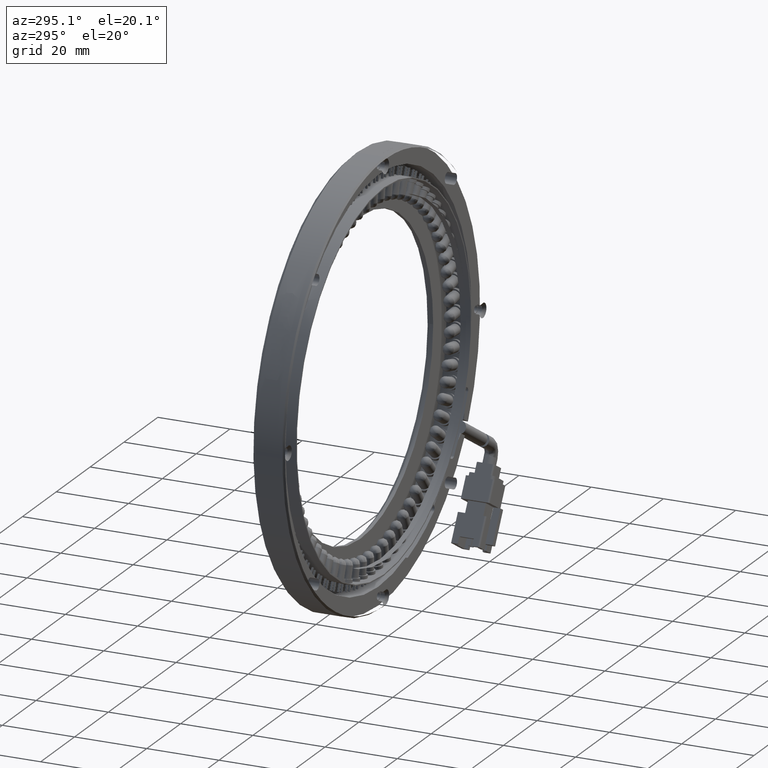
[diagram: clean part render]
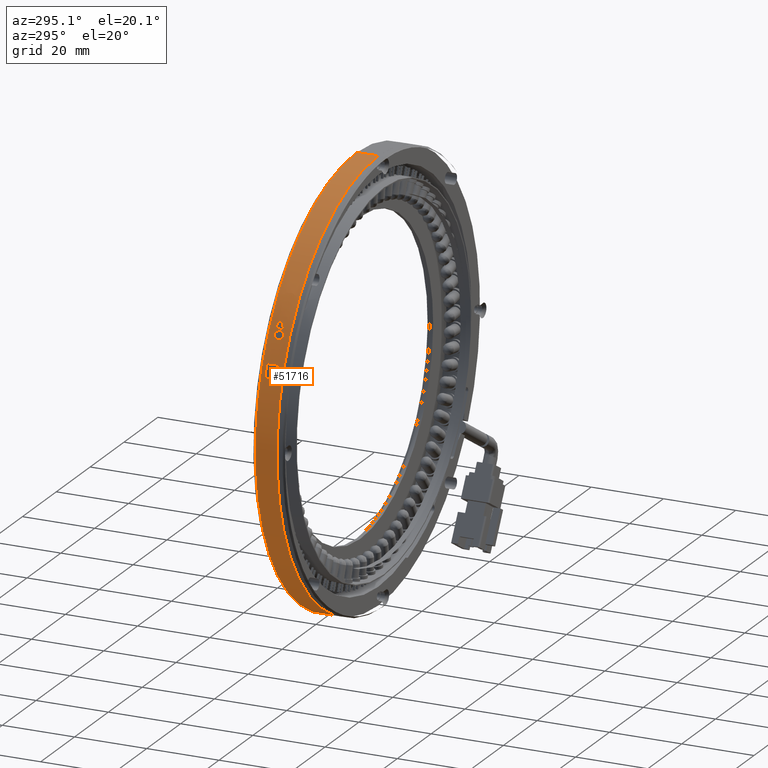
[diagram: same view with one face highlighted and labeled with its STEP entity id]
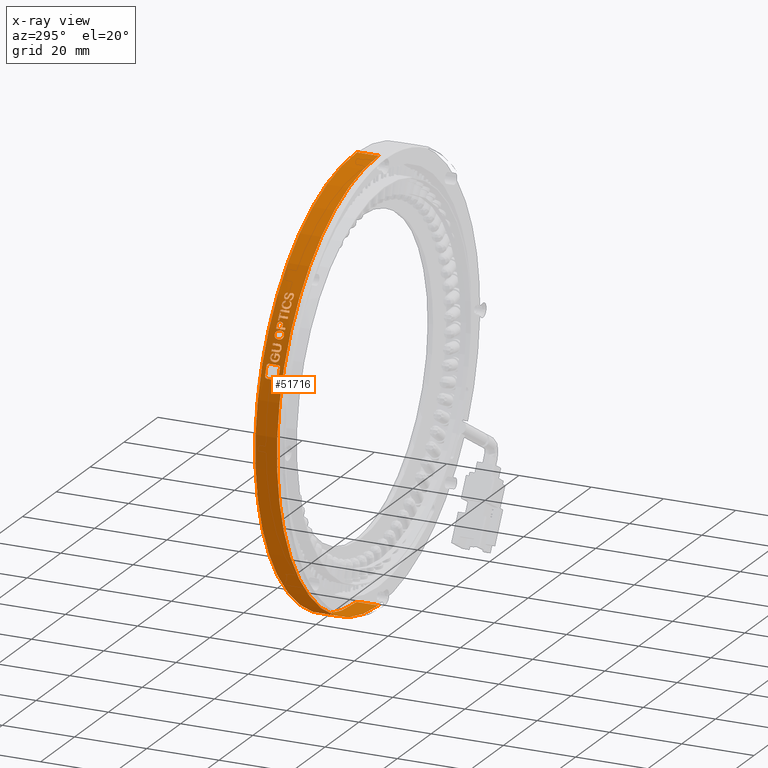
[diagram: x-ray of the same camera — body ghosted, the highlighted face saturated]
A machine part, auxiliary view. The second image highlights one B-rep face of the part: STEP entity #51716.
The next image is the same camera in x-ray: the body ghosted, the highlighted face saturated — about 0% of this face is hidden behind the body in this view.
In plain terms, the highlighted cylindrical surface (partial cylindrical patch) has radius 60 mm, axis along (0, 1, -0).
Its self-contained STEP definition (entity closure, byte-faithful):
#32 = CARTESIAN_POINT ( 'NONE',  ( 9.923234185648336600, 25.12610894143982800, 37.87731552306338800 ) ) ;
#36 = CARTESIAN_POINT ( 'NONE',  ( 1.481646273374870500, 24.85462426346205000, 24.03761759831149500 ) ) ;
#78 = EDGE_CURVE ( 'NONE', #16903, #11321, #19222, .T. ) ;
#111 = CARTESIAN_POINT ( 'NONE',  ( 1.027302153930949500, 23.27269240110592800, 22.97027950589389500 ) ) ;
#178 = CARTESIAN_POINT ( 'NONE',  ( 8.536583006779164200, 24.60743279803701000, 36.10687766441212400 ) ) ;
#253 = CARTESIAN_POINT ( 'NONE',  ( 5.831007663326865000, 25.16857775183415000, 32.20380930128497000 ) ) ;
#378 = ORIENTED_EDGE ( 'NONE', *, *, #34582, .T. ) ;
#432 = CARTESIAN_POINT ( 'NONE',  ( 8.564101065399548000, 23.02421658421588200, 36.14345842853442300 ) ) ;
#525 = CARTESIAN_POINT ( 'NONE',  ( 9.878519698132626200, 24.62605063925081300, 37.82216420904105500 ) ) ;
#534 = EDGE_CURVE ( 'NONE', #46300, #51594, #47821, .T. ) ;
#755 = CARTESIAN_POINT ( 'NONE',  ( -0.3888805264394500900, 25.81281408698575300, 19.19999853873096300 ) ) ;
#813 = VERTEX_POINT ( 'NONE', #56680 ) ;
#833 = CARTESIAN_POINT ( 'NONE',  ( 9.556175471556278100, 24.19840072243363600, 37.42179461517811500 ) ) ;
#834 = CARTESIAN_POINT ( 'NONE',  ( 56.45624510954999000, 24.11043821695044200, 0.0000000000000000000 ) ) ;
#845 = VERTEX_POINT ( 'NONE', #50019 ) ;
#867 = CARTESIAN_POINT ( 'NONE',  ( 1.616164380233862800, 22.66333226898120000, 24.34289000081806600 ) ) ;
#948 = B_SPLINE_CURVE_WITH_KNOTS ( 'NONE', 3,
 ( #59393, #14894, #29561, #32, #34781, #5071, #39780, #10102, #44718, #15101 ),
 .UNSPECIFIED., .F., .F.,
 ( 4, 2, 2, 2, 4 ),
 ( 0.0000000000000000000, 0.0003405752054295663900, 0.0006811504108591327900, 0.001021725616288699100, 0.001362300821718265600 ),
 .UNSPECIFIED. ) ;
#999 = CARTESIAN_POINT ( 'NONE',  ( 9.635204789727360700, 22.94764751927600000, 37.52053015842850700 ) ) ;
#1004 = CARTESIAN_POINT ( 'NONE',  ( 9.514988201965342900, 22.95183203810990200, 37.37051453554353500 ) ) ;
#1097 = EDGE_CURVE ( 'NONE', #51594, #61921, #9693, .T. ) ;
#1107 = CARTESIAN_POINT ( 'NONE',  ( 8.059284974962189100, 24.69629225251328500, 35.46465995910892100 ) ) ;
#1142 = VERTEX_POINT ( 'NONE', #55178 ) ;
#1184 = AXIS2_PLACEMENT_3D ( 'NONE', #36804, #39864, #37068 ) ;
#1223 = DIRECTION ( 'NONE',  ( 0.0000000000000000000, 1.000000000000000000, -0.0000000000000000000 ) ) ;
#1245 = VERTEX_POINT ( 'NONE', #45629 ) ;
#1260 = CARTESIAN_POINT ( 'NONE',  ( 1.435172570050040400, 25.20346147276436700, 23.93076631875972300 ) ) ;
#1375 = VERTEX_POINT ( 'NONE', #44588 ) ;
#1407 = ORIENTED_EDGE ( 'NONE', *, *, #33790, .T. ) ;
#1449 = ORIENTED_EDGE ( 'NONE', *, *, #28707, .T. ) ;
#1470 = VERTEX_POINT ( 'NONE', #18455 ) ;
#1890 = AXIS2_PLACEMENT_3D ( 'NONE', #10432, #45062, #15474 ) ;
#1904 = VERTEX_POINT ( 'NONE', #26094 ) ;
#1978 = CIRCLE ( 'NONE', #19405, 60.00000000000000000 ) ;
#1986 = CARTESIAN_POINT ( 'NONE',  ( 0.7515963754452446000, 25.15178949211146900, 22.29331983823857800 ) ) ;
#1995 = CARTESIAN_POINT ( 'NONE',  ( 56.45624510954999000, 25.83154443180998800, 0.0000000000000000000 ) ) ;
#2041 = LINE ( 'NONE', #39321, #40102 ) ;
#2311 = ORIENTED_EDGE ( 'NONE', *, *, #11530, .T. ) ;
#2362 = CARTESIAN_POINT ( 'NONE',  ( 9.276486651029946600, 22.75916925422559700, 37.06855823737019100 ) ) ;
#2486 = CARTESIAN_POINT ( 'NONE',  ( 1.181179786333350200, 23.91276379834578200, 23.33810518260069200 ) ) ;
#2517 = CARTESIAN_POINT ( 'NONE',  ( -0.5441614316732401600, 22.68947995939423000, 18.73375707473746100 ) ) ;
#2545 = CARTESIAN_POINT ( 'NONE',  ( 3.454408887103489300, 24.22548665857674200, 28.12129522282056400 ) ) ;
#2644 = EDGE_CURVE ( 'NONE', #47988, #3804, #19347, .T. ) ;
#2686 = CARTESIAN_POINT ( 'NONE',  ( 56.45624510954999000, 24.47090333322948700, 0.0000000000000000000 ) ) ;
#2820 = CARTESIAN_POINT ( 'NONE',  ( 7.611414575923528300, 23.91276379834578200, 34.84512204227890900 ) ) ;
#2834 = CARTESIAN_POINT ( 'NONE',  ( 2.394490487706284000, 22.61728124106598200, 26.02591996133422800 ) ) ;
#2910 = CARTESIAN_POINT ( 'NONE',  ( 1.254638357104282100, 24.61778349863711700, 23.51138385775939100 ) ) ;
#3053 = CARTESIAN_POINT ( 'NONE',  ( 2.331465730198404100, 22.62739721909188300, 25.89456135150628300 ) ) ;
#3102 = CARTESIAN_POINT ( 'NONE',  ( 8.500299529814743200, 22.65729319636782400, 36.05877429389573100 ) ) ;
#3162 = CARTESIAN_POINT ( 'NONE',  ( 3.916770056771361000, 22.63226222342280600, 28.97636482815211800 ) ) ;
#3183 = CARTESIAN_POINT ( 'NONE',  ( 4.472702288491335700, 23.12495618686577400, 29.96201448836516000 ) ) ;
#3282 = CIRCLE ( 'NONE', #24354, 60.00000000000000000 ) ;
#3315 = CARTESIAN_POINT ( 'NONE',  ( 9.423418258603815500, 24.51741496113646300, 37.25470706379150000 ) ) ;
#3339 = EDGE_CURVE ( 'NONE', #43661, #55491, #58563, .T. ) ;
#3363 = CARTESIAN_POINT ( 'NONE',  ( 3.532646574193971200, 23.12028993374394000, 28.26842131195781600 ) ) ;
#3445 = CARTESIAN_POINT ( 'NONE',  ( 10.04497234274291500, 22.70795312951655000, 38.02635631631776600 ) ) ;
#3492 = DIRECTION ( 'NONE',  ( -0.0000000000000000000, -1.000000000000000000, 0.0000000000000000000 ) ) ;
#3547 = ORIENTED_EDGE ( 'NONE', *, *, #60664, .T. ) ;
#3555 = ORIENTED_EDGE ( 'NONE', *, *, #26970, .T. ) ;
#3557 = EDGE_CURVE ( 'NONE', #10408, #64133, #48430, .T. ) ;
#3568 = ORIENTED_EDGE ( 'NONE', *, *, #10741, .T. ) ;
#3804 = VERTEX_POINT ( 'NONE', #14184 ) ;
#3816 = CARTESIAN_POINT ( 'NONE',  ( 6.248980211337358700, 24.81974054253180400, 32.85164457741355900 ) ) ;
#3950 = CARTESIAN_POINT ( 'NONE',  ( 1.870363786292600400, 24.11043821695044200, 24.90745992997399600 ) ) ;
#4029 = ORIENTED_EDGE ( 'NONE', *, *, #38268, .T. ) ;
#4076 = CARTESIAN_POINT ( 'NONE',  ( 2.871706145026368800, 23.01199743736264800, 26.99441046837911500 ) ) ;
#4173 = AXIS2_PLACEMENT_3D ( 'NONE', #40293, #10606, #45238 ) ;
#4368 = CARTESIAN_POINT ( 'NONE',  ( 9.091723590843386700, 24.28455730468422000, 36.83211657551635200 ) ) ;
#4401 = CIRCLE ( 'NONE', #35390, 60.00000000000000000 ) ;
#4497 = CARTESIAN_POINT ( 'NONE',  ( 9.164843200608666900, 24.91737033437161100, 36.92594590596492300 ) ) ;
#4604 = ORIENTED_EDGE ( 'NONE', *, *, #7286, .T. ) ;
#4625 = DIRECTION ( 'NONE',  ( 0.0000000000000000000, 1.000000000000000000, -0.0000000000000000000 ) ) ;
#4672 = B_SPLINE_CURVE_WITH_KNOTS ( 'NONE', 3,
 ( #7118, #36790, #46735, #17135, #51765, #22108, #56677, #27055, #61631, #32027 ),
 .UNSPECIFIED., .F., .F.,
 ( 4, 2, 2, 2, 4 ),
 ( 7.238216853352028700E-018, 0.0002735926546087802300, 0.0005471853092175532000, 0.0008207779638263261200, 0.001094370618435099000 ),
 .UNSPECIFIED. ) ;
#4709 = CARTESIAN_POINT ( 'NONE',  ( 56.45624510954999000, 24.81974054253180400, 0.0000000000000000000 ) ) ;
#4744 = CARTESIAN_POINT ( 'NONE',  ( 2.699356143739897600, 23.51781460120894400, 26.64951961510343300 ) ) ;
#4809 = B_SPLINE_CURVE_WITH_KNOTS ( 'NONE', 3,
 ( #5612, #30330, #5399, #40314, #10623, #45263, #15656, #50258, #20602, #55196 ),
 .UNSPECIFIED., .F., .F.,
 ( 4, 2, 2, 2, 4 ),
 ( 0.0000000000000000000, 0.0003357658216726513300, 0.0006715316433453026500, 0.001007297465017953900, 0.001343063286690605300 ),
 .UNSPECIFIED. ) ;
#4939 = CARTESIAN_POINT ( 'NONE',  ( 1.186971331863409600, 23.69580131247864000, 23.35182852655802300 ) ) ;
#4994 = CARTESIAN_POINT ( 'NONE',  ( 1.830534361988492800, 24.68815504469627300, 24.82007417455225000 ) ) ;
#5071 = CARTESIAN_POINT ( 'NONE',  ( 10.10515043328136800, 24.93893718933125600, 38.09966262264848100 ) ) ;
#5084 = CIRCLE ( 'NONE', #22079, 60.00000000000000000 ) ;
#5154 = CARTESIAN_POINT ( 'NONE',  ( 0.9891187068277358400, 23.58983229476477900, 22.87793864158298600 ) ) ;
#5222 = CARTESIAN_POINT ( 'NONE',  ( 8.466332136959417600, 24.75168298665953200, 36.01346997607557700 ) ) ;
#5336 = CARTESIAN_POINT ( 'NONE',  ( 1.387361415233108400, 24.11043821695044200, 23.82053837892418000 ) ) ;
#5399 = CARTESIAN_POINT ( 'NONE',  ( 5.368458744087808700, 25.15869065690116500, 31.46505938788817500 ) ) ;
#5451 = VERTEX_POINT ( 'NONE', #47407 ) ;
#5462 = CARTESIAN_POINT ( 'NONE',  ( 8.738676643942927300, 23.22814598054956300, 36.37380152162214100 ) ) ;
#5543 = B_SPLINE_CURVE_WITH_KNOTS ( 'NONE', 3,
 ( #23232, #57756, #28158, #62766, #33166, #3445, #38168, #8479, #43110, #13439 ),
 .UNSPECIFIED., .F., .F.,
 ( 4, 2, 2, 2, 4 ),
 ( 0.0000000000000000000, 0.0003454499512382145600, 0.0006908999024764291200, 0.001036349853714643700, 0.001381799804952858200 ),
 .UNSPECIFIED. ) ;
#5556 = CARTESIAN_POINT ( 'NONE',  ( 9.811155639813179600, 24.75308727786472200, 37.73906567010444500 ) ) ;
#5612 = CARTESIAN_POINT ( 'NONE',  ( 5.251131516070622700, 25.16857775183415000, 31.27357257939800000 ) ) ;
#5637 = CARTESIAN_POINT ( 'NONE',  ( 7.611414575923528300, 23.91276379834578200, 34.84512204227890900 ) ) ;
#5639 = EDGE_CURVE ( 'NONE', #38016, #16903, #41542, .T. ) ;
#5675 = B_SPLINE_CURVE_WITH_KNOTS ( 'NONE', 3,
 ( #42822, #23160, #38091, #8407, #43036, #13367, #48025, #18401, #52998, #23364, #57905, #28281 ),
 .UNSPECIFIED., .F., .F.,
 ( 4, 2, 2, 2, 2, 4 ),
 ( 0.0000000000000000000, 0.0004826315687214691900, 0.0007239473530822059000, 0.0009652631374429426100, 0.001447894706164408800, 0.001930526274885875000 ),
 .UNSPECIFIED. ) ;
#5751 = CARTESIAN_POINT ( 'NONE',  ( 7.611414575923528300, 23.91276379834578200, 34.84512204227890900 ) ) ;
#5771 = CARTESIAN_POINT ( 'NONE',  ( -0.3236298271388285400, 25.83154443180998800, 19.39190042708494800 ) ) ;
#5848 = CARTESIAN_POINT ( 'NONE',  ( 9.683253589802292900, 24.15694984485739000, 37.58041064562241500 ) ) ;
#5849 = DIRECTION ( 'NONE',  ( 0.0000000000000000000, 0.0000000000000000000, 1.000000000000000000 ) ) ;
#5895 = CARTESIAN_POINT ( 'NONE',  ( 1.490316024083582000, 22.62206612392716900, 24.05738405147332800 ) ) ;
#5976 = B_SPLINE_CURVE_WITH_KNOTS ( 'NONE', 3,
 ( #19038, #14248, #48873, #19254, #53833, #24221, #58782, #29170, #63758, #34165 ),
 .UNSPECIFIED., .F., .F.,
 ( 4, 2, 2, 2, 4 ),
 ( 0.0000000000000000000, 0.0002369645806207177500, 0.0004739291612414355100, 0.0007108937418621532900, 0.0009478583224828710200 ),
 .UNSPECIFIED. ) ;
#6093 = EDGE_CURVE ( 'NONE', #46246, #46300, #8839, .T. ) ;
#6138 = CARTESIAN_POINT ( 'NONE',  ( 7.964323601389535800, 24.41621245452405000, 35.33462419843478100 ) ) ;
#6155 = LINE ( 'NONE', #27687, #57228 ) ;
#6202 = CARTESIAN_POINT ( 'NONE',  ( 9.669553285793899300, 23.71508937974112300, 37.56335272827593000 ) ) ;
#6252 = CARTESIAN_POINT ( 'NONE',  ( 8.897968175854732200, 24.37788007741553600, 36.58155676154241600 ) ) ;
#6446 = ORIENTED_EDGE ( 'NONE', *, *, #12889, .T. ) ;
#6458 = EDGE_CURVE ( 'NONE', #41797, #44722, #28008, .T. ) ;
#6780 = CARTESIAN_POINT ( 'NONE',  ( 9.952583590915598000, 23.38595756545409200, 37.91318326598653200 ) ) ;
#6864 = CARTESIAN_POINT ( 'NONE',  ( 5.251131516070622700, 25.16857775183415000, 31.27357257939800000 ) ) ;
#6950 = EDGE_CURVE ( 'NONE', #37908, #1470, #45606, .T. ) ;
#7030 = DIRECTION ( 'NONE',  ( 0.0000000000000000000, 0.0000000000000000000, 1.000000000000000000 ) ) ;
#7093 = CARTESIAN_POINT ( 'NONE',  ( 2.233205733494246600, 25.16857775183415000, 25.68777921157665000 ) ) ;
#7109 = EDGE_CURVE ( 'NONE', #57271, #14771, #61045, .T. ) ;
#7118 = CARTESIAN_POINT ( 'NONE',  ( 0.4997624713877421600, 25.83154443180998800, 21.65345355284111100 ) ) ;
#7210 = VERTEX_POINT ( 'NONE', #3950 ) ;
#7286 = EDGE_CURVE ( 'NONE', #20101, #19905, #2041, .T. ) ;
#7386 = CARTESIAN_POINT ( 'NONE',  ( 9.134329747998567200, 22.93732608126405700, 36.88687914720971200 ) ) ;
#7428 = CARTESIAN_POINT ( 'NONE',  ( 1.547094151427841600, 22.98991290804183800, 24.18653579312892900 ) ) ;
#7548 = AXIS2_PLACEMENT_3D ( 'NONE', #15880, #50501, #20838 ) ;
#7576 = CARTESIAN_POINT ( 'NONE',  ( 3.527746189946615400, 24.69069963925916500, 28.25924014901767800 ) ) ;
#7647 = CARTESIAN_POINT ( 'NONE',  ( 8.095103710452951500, 22.65833295553616400, 35.51369756014799600 ) ) ;
#7721 = DIRECTION ( 'NONE',  ( 0.0000000000000000000, 0.0000000000000000000, -1.000000000000000000 ) ) ;
#7759 = CARTESIAN_POINT ( 'NONE',  ( 9.533514451683828400, 24.81813103411046800, 37.39330730316015000 ) ) ;
#7939 = CARTESIAN_POINT ( 'NONE',  ( 1.202987938025974500, 24.33058957379348500, 23.38969883258916800 ) ) ;
#8070 = CARTESIAN_POINT ( 'NONE',  ( 7.925092645939543000, 23.77872300562112100, 35.28069228388919500 ) ) ;
#8072 = CARTESIAN_POINT ( 'NONE',  ( 2.151989000250206900, 22.78364423263248600, 25.51582885223133300 ) ) ;
#8111 = VERTEX_POINT ( 'NONE', #38797 ) ;
#8122 = CARTESIAN_POINT ( 'NONE',  ( 8.339581582412856500, 22.62206612392716600, 35.84403717616682900 ) ) ;
#8200 = VERTEX_POINT ( 'NONE', #40059 ) ;
#8217 = CARTESIAN_POINT ( 'NONE',  ( 4.300045469717953300, 22.78265662021528800, 29.66063486935562900 ) ) ;
#8285 = CARTESIAN_POINT ( 'NONE',  ( 9.710139293260642300, 22.95167848871650000, 37.61389424164965300 ) ) ;
#8364 = DIRECTION ( 'NONE',  ( 0.0000000000000000000, 0.0000000000000000000, 1.000000000000000000 ) ) ;
#8398 = CARTESIAN_POINT ( 'NONE',  ( 3.455196486258333500, 23.57704158399238600, 28.12278374622411500 ) ) ;
#8407 = CARTESIAN_POINT ( 'NONE',  ( 4.262601191491430800, 25.06746732613634200, 29.59441147811734800 ) ) ;
#8453 = CARTESIAN_POINT ( 'NONE',  ( 0.7284135111087610700, 22.42320254754309900, 22.23532079252533900 ) ) ;
#8479 = CARTESIAN_POINT ( 'NONE',  ( 9.829331719901350800, 22.62957065930445900, 37.76167473886257400 ) ) ;
#8528 = CARTESIAN_POINT ( 'NONE',  ( 8.285233984814434300, 22.62206612392716900, 35.77084968547158900 ) ) ;
#8542 = B_SPLINE_CURVE_WITH_KNOTS ( 'NONE', 3,
 ( #29635, #59244, #4939, #39658, #9966, #44576, #14964, #49580, #19943, #54517 ),
 .UNSPECIFIED., .F., .F.,
 ( 4, 2, 2, 2, 4 ),
 ( 0.0000000000000000000, 0.0003248372424297356500, 0.0006496744848594713000, 0.0009745117272892068900, 0.001299348969718942600 ),
 .UNSPECIFIED. ) ;
#8622 = ORIENTED_EDGE ( 'NONE', *, *, #61317, .T. ) ;
#8783 = ORIENTED_EDGE ( 'NONE', *, *, #10558, .T. ) ;
#8839 = LINE ( 'NONE', #9644, #58343 ) ;
#8877 = CARTESIAN_POINT ( 'NONE',  ( 2.931907166717026700, 23.74997310067136900, 27.11356206368708400 ) ) ;
#9061 = EDGE_CURVE ( 'NONE', #19367, #42654, #53214, .T. ) ;
#9093 = CARTESIAN_POINT ( 'NONE',  ( 2.807988282612361400, 22.83382972249189900, 26.86758372859980100 ) ) ;
#9158 = CARTESIAN_POINT ( 'NONE',  ( 8.586422673546916700, 24.37788007741553600, 36.17291942801322300 ) ) ;
#9253 = DIRECTION ( 'NONE',  ( -0.0000000000000000000, -1.000000000000000000, 0.0000000000000000000 ) ) ;
#9263 = B_SPLINE_CURVE_WITH_KNOTS ( 'NONE', 3,
 ( #25007, #49881, #30155, #432, #35158, #5462, #40156, #10474 ),
 .UNSPECIFIED., .F., .F.,
 ( 4, 2, 2, 4 ),
 ( 0.0000000000000000000, 0.0002640778251836024800, 0.0005281556503672049600, 0.001056311300734409900 ),
 .UNSPECIFIED. ) ;
#9276 = CARTESIAN_POINT ( 'NONE',  ( 2.698181264386451300, 23.59881030997368300, 26.64714940888276100 ) ) ;
#9381 = CARTESIAN_POINT ( 'NONE',  ( 9.092089236856448800, 24.51741496113646300, 36.83254998594570400 ) ) ;
#9520 = CARTESIAN_POINT ( 'NONE',  ( 9.318914558167957600, 25.11322741173599800, 37.12249830769121700 ) ) ;
#9598 = VERTEX_POINT ( 'NONE', #32466 ) ;
#9644 = CARTESIAN_POINT ( 'NONE',  ( 2.011463759682141600, 21.01889671361172800, 25.21439635932381400 ) ) ;
#9658 = EDGE_CURVE ( 'NONE', #34183, #53107, #6155, .T. ) ;
#9693 = LINE ( 'NONE', #59337, #46125 ) ;
#9740 = DIRECTION ( 'NONE',  ( 0.0000000000000000000, 0.0000000000000000000, -1.000000000000000000 ) ) ;
#9832 = VERTEX_POINT ( 'NONE', #14715 ) ;
#9872 = VERTEX_POINT ( 'NONE', #5336 ) ;
#9895 = EDGE_CURVE ( 'NONE', #3804, #41797, #54064, .T. ) ;
#9966 = CARTESIAN_POINT ( 'NONE',  ( 1.218439336532243500, 23.37860528905766000, 23.42622171009641400 ) ) ;
#9970 = CARTESIAN_POINT ( 'NONE',  ( 1.448265612423310600, 22.62206612392716900, 23.96084705605567700 ) ) ;
#10025 = CARTESIAN_POINT ( 'NONE',  ( 1.865824222648367000, 24.47090333322948700, 24.89750885913962700 ) ) ;
#10034 = CARTESIAN_POINT ( 'NONE',  ( 8.577893137284935000, 24.43801024833158000, 36.16163177435466000 ) ) ;
#10102 = CARTESIAN_POINT ( 'NONE',  ( 10.21893373848854700, 24.64756623872961300, 38.23759696284467000 ) ) ;
#10172 = CARTESIAN_POINT ( 'NONE',  ( 0.9790005466820614900, 23.92439170532251300, 22.85334408159429000 ) ) ;
#10232 = CARTESIAN_POINT ( 'NONE',  ( 8.366228896777432300, 24.83342529613341700, 35.87971068594084300 ) ) ;
#10352 = CARTESIAN_POINT ( 'NONE',  ( 9.921839511411821600, 24.47739636185008600, 37.87544513031906500 ) ) ;
#10354 = ORIENTED_EDGE ( 'NONE', *, *, #36846, .T. ) ;
#10408 = VERTEX_POINT ( 'NONE', #23866 ) ;
#10432 = CARTESIAN_POINT ( 'NONE',  ( 56.45624510954999000, 24.81974054253180400, 0.0000000000000000000 ) ) ;
#10474 = CARTESIAN_POINT ( 'NONE',  ( 8.864615349366916400, 23.51741496113646300, 36.53815508163564400 ) ) ;
#10558 = EDGE_CURVE ( 'NONE', #42841, #28299, #4809, .T. ) ;
#10561 = CARTESIAN_POINT ( 'NONE',  ( 9.718692703702380700, 24.82994805791481600, 37.62450994174651700 ) ) ;
#10606 = DIRECTION ( 'NONE',  ( -0.0000000000000000000, -1.000000000000000000, 0.0000000000000000000 ) ) ;
#10623 = CARTESIAN_POINT ( 'NONE',  ( 5.538936480554109000, 25.04985578111618200, 31.74010865625681500 ) ) ;
#10649 = CARTESIAN_POINT ( 'NONE',  ( 9.420985209756889100, 24.46592667247094300, 37.25163542065815400 ) ) ;
#10662 = CARTESIAN_POINT ( 'NONE',  ( 7.627178437811181800, 24.22937772317371200, 34.86723433020698300 ) ) ;
#10741 = EDGE_CURVE ( 'NONE', #28676, #22350, #19899, .T. ) ;
#10785 = EDGE_CURVE ( 'NONE', #64186, #845, #29175, .T. ) ;
#10905 = EDGE_CURVE ( 'NONE', #11283, #34239, #59002, .T. ) ;
#11043 = EDGE_CURVE ( 'NONE', #61921, #29122, #5976, .T. ) ;
#11146 = CARTESIAN_POINT ( 'NONE',  ( 7.928295487274077400, 24.10215064450183000, 35.28510162130320500 ) ) ;
#11278 = CARTESIAN_POINT ( 'NONE',  ( 6.248980211337358700, 22.66857775183414600, 32.85164457741355900 ) ) ;
#11283 = VERTEX_POINT ( 'NONE', #51051 ) ;
#11321 = VERTEX_POINT ( 'NONE', #55990 ) ;
#11331 = LINE ( 'NONE', #17299, #22949 ) ;
#11332 = FACE_BOUND ( 'NONE', #38603, .T. ) ;
#11438 = EDGE_LOOP ( 'NONE', ( #3555, #47280, #33286, #52138 ) ) ;
#11505 = ORIENTED_EDGE ( 'NONE', *, *, #78, .T. ) ;
#11530 = EDGE_CURVE ( 'NONE', #47191, #47988, #948, .T. ) ;
#11568 = DIRECTION ( 'NONE',  ( 0.0000000000000000000, 1.000000000000000000, 0.0000000000000000000 ) ) ;
#11579 = VERTEX_POINT ( 'NONE', #253 ) ;
#11821 = ORIENTED_EDGE ( 'NONE', *, *, #17468, .T. ) ;
#12110 = CARTESIAN_POINT ( 'NONE',  ( -0.3536487047677361300, 22.10311909818640800, 19.30400454891055200 ) ) ;
#12120 = B_SPLINE_CURVE_WITH_KNOTS ( 'NONE', 3,
 ( #12882, #17904, #62413, #32811, #3102, #37800, #8122, #42755 ),
 .UNSPECIFIED., .F., .F.,
 ( 4, 2, 2, 4 ),
 ( 0.0000000000000000000, 0.0005454526748395974900, 0.0008181790122594039300, 0.001090905349679210400 ),
 .UNSPECIFIED. ) ;
#12224 = EDGE_CURVE ( 'NONE', #16481, #43661, #55344, .T. ) ;
#12312 = LINE ( 'NONE', #60645, #61830 ) ;
#12342 = EDGE_CURVE ( 'NONE', #59282, #48645, #50408, .T. ) ;
#12353 = ORIENTED_EDGE ( 'NONE', *, *, #17315, .T. ) ;
#12391 = CARTESIAN_POINT ( 'NONE',  ( 9.058483951078875100, 23.08718240299692700, 36.78929514362196300 ) ) ;
#12401 = CARTESIAN_POINT ( 'NONE',  ( 9.956889728221284500, 24.03190008374803500, 37.91861578998415900 ) ) ;
#12421 = CARTESIAN_POINT ( 'NONE',  ( 1.609329853801699100, 23.08387911216566500, 24.32731571279610300 ) ) ;
#12555 = CARTESIAN_POINT ( 'NONE',  ( 3.690733050535294000, 25.04554990398367300, 28.56263138494295400 ) ) ;
#12607 = CARTESIAN_POINT ( 'NONE',  ( 7.920168528890230600, 22.79003188605071300, 35.27397797575112300 ) ) ;
#12736 = CARTESIAN_POINT ( 'NONE',  ( 9.460074758032099900, 24.74135676568569100, 37.30095581300575700 ) ) ;
#12739 = ORIENTED_EDGE ( 'NONE', *, *, #9061, .T. ) ;
#12818 = ORIENTED_EDGE ( 'NONE', *, *, #10785, .T. ) ;
#12882 = CARTESIAN_POINT ( 'NONE',  ( 8.864615349366916400, 23.04067077508995000, 36.53815508163564400 ) ) ;
#12889 = EDGE_CURVE ( 'NONE', #16946, #8111, #61441, .T. ) ;
#12910 = CARTESIAN_POINT ( 'NONE',  ( 1.182705444703148200, 24.01836715051874200, 23.34171862359736600 ) ) ;
#12978 = CARTESIAN_POINT ( 'NONE',  ( 8.864615349366916400, 23.04067077508995000, 36.53815508163564400 ) ) ;
#12998 = CARTESIAN_POINT ( 'NONE',  ( 5.662047489251566600, 23.91050727732042700, 31.93666263938789400 ) ) ;
#13042 = CARTESIAN_POINT ( 'NONE',  ( 7.960256789752873100, 23.45438511600643800, 35.32902094084965900 ) ) ;
#13043 = CARTESIAN_POINT ( 'NONE',  ( 2.071783517155356700, 23.01071169477116700, 25.34425706400566000 ) ) ;
#13127 = CARTESIAN_POINT ( 'NONE',  ( 56.45624510954999000, 21.01889671361172800, 0.0000000000000000000 ) ) ;
#13178 = CARTESIAN_POINT ( 'NONE',  ( 4.074051826493406000, 22.63230186960881300, 29.25973663838220800 ) ) ;
#13237 = CARTESIAN_POINT ( 'NONE',  ( 9.820323617519131100, 22.99323702349364100, 37.75041014247444300 ) ) ;
#13356 = CARTESIAN_POINT ( 'NONE',  ( 3.441578826384683600, 23.90113589136899500, 28.09706673097061400 ) ) ;
#13367 = CARTESIAN_POINT ( 'NONE',  ( 4.362328804605823500, 24.93140474050551700, 29.76958402043453600 ) ) ;
#13420 = CARTESIAN_POINT ( 'NONE',  ( 0.6627458177508202000, 22.20911227281104400, 22.07011027595394400 ) ) ;
#13439 = CARTESIAN_POINT ( 'NONE',  ( 9.683253589802292900, 22.62206612392716900, 37.58041064562241500 ) ) ;
#13644 = ORIENTED_EDGE ( 'NONE', *, *, #27416, .T. ) ;
#13722 = DIRECTION ( 'NONE',  ( 0.0000000000000000000, 1.000000000000000000, -0.0000000000000000000 ) ) ;
#13726 = ORIENTED_EDGE ( 'NONE', *, *, #38868, .F. ) ;
#13932 = CARTESIAN_POINT ( 'NONE',  ( 9.598840131063038700, 23.73460401706429900, 37.47527660253148700 ) ) ;
#14078 = CARTESIAN_POINT ( 'NONE',  ( 2.722236358291501500, 22.70887400817838800, 26.69570444111346300 ) ) ;
#14164 = CARTESIAN_POINT ( 'NONE',  ( 9.669553285793899300, 23.71508937974112300, 37.56335272827593000 ) ) ;
#14184 = CARTESIAN_POINT ( 'NONE',  ( 9.931787614937571000, 24.42439170532251300, 37.88766098391403900 ) ) ;
#14248 = CARTESIAN_POINT ( 'NONE',  ( 2.233205733494246600, 23.51920157611175100, 25.68777921157664700 ) ) ;
#14414 = EDGE_CURVE ( 'NONE', #45224, #16481, #18967, .T. ) ;
#14492 = EDGE_CURVE ( 'NONE', #59659, #9832, #48350, .T. ) ;
#14525 = CARTESIAN_POINT ( 'NONE',  ( 9.509743084139662600, 25.19310583841375400, 37.36357296664306200 ) ) ;
#14541 = AXIS2_PLACEMENT_3D ( 'NONE', #15335, #15425, #15272 ) ;
#14550 = CARTESIAN_POINT ( 'NONE',  ( 2.499050657689312300, 22.95584636477897400, 26.24171800739439700 ) ) ;
#14709 = B_SPLINE_CURVE_WITH_KNOTS ( 'NONE', 3,
 ( #30351, #10649, #25624, #60175, #30560, #833, #35540, #5848 ),
 .UNSPECIFIED., .F., .F.,
 ( 4, 2, 2, 4 ),
 ( 0.0000000000000000000, 0.0001533060095494768500, 0.0003066120190989537000, 0.0006132240381978881000 ),
 .UNSPECIFIED. ) ;
#14715 = CARTESIAN_POINT ( 'NONE',  ( 9.952583590915594400, 23.33136844950856000, 37.91318326598653200 ) ) ;
#14721 = CARTESIAN_POINT ( 'NONE',  ( -0.3236298271388285400, 22.10311909818640800, 19.39190042708494800 ) ) ;
#14771 = VERTEX_POINT ( 'NONE', #40529 ) ;
#14773 = VERTEX_POINT ( 'NONE', #30547 ) ;
#14828 = EDGE_CURVE ( 'NONE', #22421, #34332, #64119, .T. ) ;
#14835 = ORIENTED_EDGE ( 'NONE', *, *, #64275, .T. ) ;
#14863 = CARTESIAN_POINT ( 'NONE',  ( -0.3236298271388285400, 25.83154443180998800, 19.39190042708494800 ) ) ;
#14894 = CARTESIAN_POINT ( 'NONE',  ( 9.713634624005976500, 25.20024659728980500, 37.61836584800073500 ) ) ;
#14897 = CARTESIAN_POINT ( 'NONE',  ( 1.625597240102279100, 24.57924359024434900, 24.36392789240338900 ) ) ;
#14964 = CARTESIAN_POINT ( 'NONE',  ( 1.291555678160999400, 23.10928685523182600, 23.59800782251421900 ) ) ;
#14966 = CARTESIAN_POINT ( 'NONE',  ( 1.316378454387499200, 22.65409756848852000, 23.65628468975779000 ) ) ;
#15101 = CARTESIAN_POINT ( 'NONE',  ( 10.25264655734868500, 24.42439170532251300, 38.27828994125809500 ) ) ;
#15230 = AXIS2_PLACEMENT_3D ( 'NONE', #36380, #36105, #35664 ) ;
#15250 = CARTESIAN_POINT ( 'NONE',  ( 8.291724138013087500, 24.84299635648529000, 35.77958802980242600 ) ) ;
#15272 = DIRECTION ( 'NONE',  ( 0.0000000000000000000, 0.0000000000000000000, -1.000000000000000000 ) ) ;
#15317 = EDGE_LOOP ( 'NONE', ( #32944, #12818, #54891, #14835, #33035, #33544, #61007, #11821 ) ) ;
#15335 = CARTESIAN_POINT ( 'NONE',  ( 56.45624510954999000, 23.76160100764809600, 0.0000000000000000000 ) ) ;
#15425 = DIRECTION ( 'NONE',  ( -0.0000000000000000000, -1.000000000000000000, 0.0000000000000000000 ) ) ;
#15451 = AXIS2_PLACEMENT_3D ( 'NONE', #50666, #21018, #55613 ) ;
#15474 = DIRECTION ( 'NONE',  ( 0.0000000000000000000, 0.0000000000000000000, -1.000000000000000000 ) ) ;
#15475 = DIRECTION ( 'NONE',  ( -0.0000000000000000000, -1.000000000000000000, 0.0000000000000000000 ) ) ;
#15495 = VECTOR ( 'NONE', #15475, 1000.000000000000000 ) ;
#15597 = CARTESIAN_POINT ( 'NONE',  ( 9.648930365711571300, 24.84299635648529000, 37.53765158439252800 ) ) ;
#15656 = CARTESIAN_POINT ( 'NONE',  ( 5.657501849895255400, 24.79714031208519400, 31.92943442154318100 ) ) ;
#15686 = CARTESIAN_POINT ( 'NONE',  ( 7.715274093872706000, 24.68378524457255100, 34.99039253860445300 ) ) ;
#15747 = CARTESIAN_POINT ( 'NONE',  ( 9.092089236856448800, 24.51741496113646300, 36.83254998594570400 ) ) ;
#15880 = CARTESIAN_POINT ( 'NONE',  ( 56.45624510954999000, 25.16857775183415000, 0.0000000000000000000 ) ) ;
#15992 = CIRCLE ( 'NONE', #19529, 60.00000000000000000 ) ;
#16084 = ORIENTED_EDGE ( 'NONE', *, *, #29649, .T. ) ;
#16092 = CARTESIAN_POINT ( 'NONE',  ( 0.9790005466820614900, 23.92439170532251300, 22.85334408159429000 ) ) ;
#16167 = CARTESIAN_POINT ( 'NONE',  ( 7.923484916223869400, 23.88950798439226700, 35.27848052307666600 ) ) ;
#16269 = VERTEX_POINT ( 'NONE', #3816 ) ;
#16408 = DIRECTION ( 'NONE',  ( 0.0000000000000000000, 1.000000000000000000, -0.0000000000000000000 ) ) ;
#16417 = CARTESIAN_POINT ( 'NONE',  ( 56.45624510954999000, 21.01889671361172800, 0.0000000000000000000 ) ) ;
#16473 = CARTESIAN_POINT ( 'NONE',  ( 1.870363786292600400, 23.18020565881087700, 24.90745992997399600 ) ) ;
#16481 = VERTEX_POINT ( 'NONE', #5751 ) ;
#16532 = VERTEX_POINT ( 'NONE', #6202 ) ;
#16789 = CARTESIAN_POINT ( 'NONE',  ( 9.945089035272033600, 23.44046494002089900, 37.90399749006888200 ) ) ;
#16903 = VERTEX_POINT ( 'NONE', #19834 ) ;
#16946 = VERTEX_POINT ( 'NONE', #55067 ) ;
#17000 = EDGE_CURVE ( 'NONE', #54518, #51242, #28323, .T. ) ;
#17135 = CARTESIAN_POINT ( 'NONE',  ( 0.6305582947245944600, 25.77144734358387600, 21.98864410079080400 ) ) ;
#17184 = ORIENTED_EDGE ( 'NONE', *, *, #58924, .T. ) ;
#17236 = CARTESIAN_POINT ( 'NONE',  ( 7.141686358356894400, 22.66857775183414600, 34.17710191305173600 ) ) ;
#17299 = CARTESIAN_POINT ( 'NONE',  ( 4.992781453850021500, 21.01889671361172800, 30.84658665976591900 ) ) ;
#17315 = EDGE_CURVE ( 'NONE', #22350, #42841, #31386, .T. ) ;
#17403 = CARTESIAN_POINT ( 'NONE',  ( 10.14317785718576600, 23.86528328243156200, 38.14588860058679400 ) ) ;
#17420 = CARTESIAN_POINT ( 'NONE',  ( 1.651916582270490200, 23.23049422474311500, 24.42307522297198100 ) ) ;
#17468 = EDGE_CURVE ( 'NONE', #53107, #53395, #49675, .T. ) ;
#17543 = B_SPLINE_CURVE_WITH_KNOTS ( 'NONE', 3,
 ( #27279, #32258, #2545, #37266, #7576, #42222, #12555, #47190, #17562, #52191 ),
 .UNSPECIFIED., .F., .F.,
 ( 4, 2, 2, 2, 4 ),
 ( 0.0000000000000000000, 0.0004841879538657691000, 0.0009683759077315382100, 0.001452563861597307400, 0.001936751815463076400 ),
 .UNSPECIFIED. ) ;
#17562 = CARTESIAN_POINT ( 'NONE',  ( 3.915153947740927600, 25.19651150737965400, 28.97345311281290800 ) ) ;
#17625 = CARTESIAN_POINT ( 'NONE',  ( 7.808656180682532100, 22.94179670114879600, 35.12000395079575600 ) ) ;
#17748 = CARTESIAN_POINT ( 'NONE',  ( 9.424868134516817300, 24.61145752460992500, 37.25654038368500700 ) ) ;
#17777 = CARTESIAN_POINT ( 'NONE',  ( 4.564710510425308100, 23.73967425788649200, 30.12090121154113500 ) ) ;
#17904 = CARTESIAN_POINT ( 'NONE',  ( 8.797146797224764100, 22.89453423894604000, 36.45027603172655300 ) ) ;
#17969 = B_SPLINE_CURVE_WITH_KNOTS ( 'NONE', 3,
 ( #20803, #50472, #60341, #30738, #1004, #35721 ),
 .UNSPECIFIED., .F., .F.,
 ( 4, 2, 4 ),
 ( 0.0000000000000000000, 0.0005654347005281697300, 0.001130869401056339500 ),
 .UNSPECIFIED. ) ;
#18025 = CARTESIAN_POINT ( 'NONE',  ( 5.543731675333851200, 23.64967029063661400, 31.74780086174840200 ) ) ;
#18069 = CARTESIAN_POINT ( 'NONE',  ( 8.056450339722202300, 23.16383546652335900, 35.46073479453945500 ) ) ;
#18073 = CARTESIAN_POINT ( 'NONE',  ( 2.034855264893323600, 23.21366745701070400, 25.26484951013669200 ) ) ;
#18190 = CARTESIAN_POINT ( 'NONE',  ( 3.840729944562000700, 22.66051291490213500, 28.83800195615259600 ) ) ;
#18278 = CARTESIAN_POINT ( 'NONE',  ( 9.911562982269238400, 23.10300833462873600, 37.86282144720015500 ) ) ;
#18324 = CIRCLE ( 'NONE', #15451, 60.00000000000000000 ) ;
#18401 = CARTESIAN_POINT ( 'NONE',  ( 4.468854903950156800, 24.68621933386322100, 29.95533034722613400 ) ) ;
#18404 = VERTEX_POINT ( 'NONE', #56592 ) ;
#18450 = CARTESIAN_POINT ( 'NONE',  ( 0.5671892023740676700, 22.11254548581713000, 21.82707606760651600 ) ) ;
#18455 = CARTESIAN_POINT ( 'NONE',  ( 7.434923710838043900, 22.66857775183414600, 34.59638779300791400 ) ) ;
#18677 = CARTESIAN_POINT ( 'NONE',  ( 56.45624510954999000, 25.16857775183415000, 0.0000000000000000000 ) ) ;
#18967 = B_SPLINE_CURVE_WITH_KNOTS ( 'NONE', 3,
 ( #52054, #32328, #7647, #42296, #12607, #47255, #17625, #52258, #22614, #57162, #27550, #62138, #32547, #2820 ),
 .UNSPECIFIED., .F., .F.,
 ( 4, 2, 2, 2, 2, 2, 4 ),
 ( 0.0000000000000000000, 0.0004806520773720733000, 0.0007209781160581117400, 0.0009613041547441503900, 0.001201630193430188900, 0.001441956232116227400, 0.001922608309488314900 ),
 .UNSPECIFIED. ) ;
#19038 = CARTESIAN_POINT ( 'NONE',  ( 2.233205733494246600, 23.59881030997368300, 25.68777921157665000 ) ) ;
#19081 = CARTESIAN_POINT ( 'NONE',  ( 2.592696479380499000, 22.62168196006960500, 26.43368508070616900 ) ) ;
#19177 = ORIENTED_EDGE ( 'NONE', *, *, #14492, .T. ) ;
#19188 = ORIENTED_EDGE ( 'NONE', *, *, #40617, .T. ) ;
#19222 = CIRCLE ( 'NONE', #14541, 60.00000000000000000 ) ;
#19254 = CARTESIAN_POINT ( 'NONE',  ( 2.250031557146681100, 23.28530853999809500, 25.72327141301228800 ) ) ;
#19347 = CIRCLE ( 'NONE', #15230, 60.00000000000000000 ) ;
#19367 = VERTEX_POINT ( 'NONE', #16473 ) ;
#19405 = AXIS2_PLACEMENT_3D ( 'NONE', #54012, #24383, #58949 ) ;
#19516 = CARTESIAN_POINT ( 'NONE',  ( 9.642088080236796100, 25.20346147276436700, 37.52911805031935400 ) ) ;
#19529 = AXIS2_PLACEMENT_3D ( 'NONE', #59310, #29698, #64300 ) ;
#19675 = B_SPLINE_CURVE_WITH_KNOTS ( 'NONE', 3,
 ( #49167, #14550, #54132, #24506, #59070, #29468, #64049, #34446, #4744, #39480 ),
 .UNSPECIFIED., .F., .F.,
 ( 4, 2, 2, 2, 4 ),
 ( 0.0000000000000000000, 0.0002417750281824221700, 0.0004835500563648443400, 0.0007253250845472665100, 0.0009671001127296886800 ),
 .UNSPECIFIED. ) ;
#19753 = VECTOR ( 'NONE', #26554, 1000.000000000000000 ) ;
#19834 = CARTESIAN_POINT ( 'NONE',  ( 1.668464710153250200, 23.76160100764809600, 24.46015369754407200 ) ) ;
#19865 = CARTESIAN_POINT ( 'NONE',  ( 1.641830659765683500, 24.47090333322948700, 24.40040918770169800 ) ) ;
#19875 = ORIENTED_EDGE ( 'NONE', *, *, #55920, .T. ) ;
#19899 = LINE ( 'NONE', #41381, #44646 ) ;
#19905 = VERTEX_POINT ( 'NONE', #55775 ) ;
#19943 = CARTESIAN_POINT ( 'NONE',  ( 1.408838767899545100, 22.96898423963354900, 23.87038042492698500 ) ) ;
#19945 = CARTESIAN_POINT ( 'NONE',  ( 1.195026861109474100, 22.77978121508962400, 23.37097656973465500 ) ) ;
#20011 = DIRECTION ( 'NONE',  ( 0.0000000000000000000, 1.000000000000000000, -0.0000000000000000000 ) ) ;
#20101 = VERTEX_POINT ( 'NONE', #63060 ) ;
#20167 = EDGE_CURVE ( 'NONE', #1375, #28676, #1978, .T. ) ;
#20177 = CIRCLE ( 'NONE', #1890, 60.00000000000000000 ) ;
#20475 = EDGE_CURVE ( 'NONE', #63915, #16269, #46090, .T. ) ;
#20530 = B_SPLINE_CURVE_WITH_KNOTS ( 'NONE', 3,
 ( #19865, #49500, #14897, #24842, #59398, #29768, #36, #34785 ),
 .UNSPECIFIED., .F., .F.,
 ( 4, 2, 2, 4 ),
 ( 0.0000000000000000000, 0.0001722130171578511200, 0.0003444260343157022400, 0.0006888520686313907200 ),
 .UNSPECIFIED. ) ;
#20554 = CARTESIAN_POINT ( 'NONE',  ( -0.5405642914945907300, 25.21599418170021800, 18.74471766650683700 ) ) ;
#20602 = CARTESIAN_POINT ( 'NONE',  ( 5.698212716225048000, 24.46778668256928700, 31.99409554516615000 ) ) ;
#20603 = ORIENTED_EDGE ( 'NONE', *, *, #10905, .T. ) ;
#20642 = CARTESIAN_POINT ( 'NONE',  ( 7.908633141442186000, 25.03474726267453900, 35.25834797216172200 ) ) ;
#20676 = CARTESIAN_POINT ( 'NONE',  ( 1.831476475047161700, 22.99081828036811700, 24.82216538147547200 ) ) ;
#20803 = CARTESIAN_POINT ( 'NONE',  ( 9.058483951078875100, 23.52904286811321900, 36.78929514362196300 ) ) ;
#20836 = CARTESIAN_POINT ( 'NONE',  ( 0.9888184728314016700, 24.24694747236634000, 22.87720678111781300 ) ) ;
#20838 = DIRECTION ( 'NONE',  ( 0.0000000000000000000, 0.0000000000000000000, 1.000000000000000000 ) ) ;
#20909 = CARTESIAN_POINT ( 'NONE',  ( 8.227756318779571000, 24.83888691890289700, 35.69347805647322500 ) ) ;
#21018 = DIRECTION ( 'NONE',  ( 0.0000000000000000000, 1.000000000000000000, -0.0000000000000000000 ) ) ;
#21022 = EDGE_LOOP ( 'NONE', ( #37366, #32773, #13644, #55667, #1407, #4029, #47643, #30483, #11505, #17184, #378, #30884, #12739, #8622 ) ) ;
#21056 = CARTESIAN_POINT ( 'NONE',  ( 1.050624912890465000, 24.70729790117949400, 23.02669422352482400 ) ) ;
#21370 = DIRECTION ( 'NONE',  ( 0.0000000000000000000, 0.0000000000000000000, 1.000000000000000000 ) ) ;
#21780 = CARTESIAN_POINT ( 'NONE',  ( 9.887754483554289200, 23.57444613388787100, 37.83355242500469000 ) ) ;
#21833 = VECTOR ( 'NONE', #62358, 1000.000000000000000 ) ;
#21894 = DIRECTION ( 'NONE',  ( 0.0000000000000000000, 0.0000000000000000000, 1.000000000000000000 ) ) ;
#22045 = VERTEX_POINT ( 'NONE', #14863 ) ;
#22079 = AXIS2_PLACEMENT_3D ( 'NONE', #30954, #1223, #35939 ) ;
#22108 = CARTESIAN_POINT ( 'NONE',  ( 0.7108544552797327900, 25.59789008049073900, 22.19134555188149700 ) ) ;
#22242 = DIRECTION ( 'NONE',  ( 0.0000000000000000000, 1.000000000000000000, -0.0000000000000000000 ) ) ;
#22316 = CARTESIAN_POINT ( 'NONE',  ( -0.4394923926073208100, 22.16271058483880900, 19.04948575012602100 ) ) ;
#22350 = VERTEX_POINT ( 'NONE', #22817 ) ;
#22390 = CARTESIAN_POINT ( 'NONE',  ( 10.27616711602394200, 23.59355981780333900, 38.30671076611898200 ) ) ;
#22411 = CARTESIAN_POINT ( 'NONE',  ( 1.668464710153250200, 23.34299635648531900, 24.46015369754407200 ) ) ;
#22421 = VERTEX_POINT ( 'NONE', #52867 ) ;
#22429 = EDGE_CURVE ( 'NONE', #46850, #59282, #5543, .T. ) ;
#22516 = CARTESIAN_POINT ( 'NONE',  ( 9.619531379057203700, 24.84299635648528300, 37.50099272153351400 ) ) ;
#22581 = CARTESIAN_POINT ( 'NONE',  ( 1.668464710153250200, 23.34299635648531900, 24.46015369754407200 ) ) ;
#22614 = CARTESIAN_POINT ( 'NONE',  ( 7.723838963946340300, 23.13589756520783800, 35.00219788126519700 ) ) ;
#22626 = CARTESIAN_POINT ( 'NONE',  ( 2.458895722261524000, 22.62206612392716900, 26.15886578479842900 ) ) ;
#22653 = AXIS2_PLACEMENT_3D ( 'NONE', #834, #35542, #5849 ) ;
#22737 = CARTESIAN_POINT ( 'NONE',  ( 9.423418258603815500, 24.51741496113646300, 37.25470706379150000 ) ) ;
#22751 = DIRECTION ( 'NONE',  ( -0.0000000000000000000, -1.000000000000000000, 0.0000000000000000000 ) ) ;
#22817 = CARTESIAN_POINT ( 'NONE',  ( 4.732536721117057300, 25.16857775183415000, 30.40818953092000100 ) ) ;
#22949 = VECTOR ( 'NONE', #52139, 1000.000000000000000 ) ;
#22951 = FACE_BOUND ( 'NONE', #21022, .T. ) ;
#22956 = VERTEX_POINT ( 'NONE', #42807 ) ;
#22987 = CARTESIAN_POINT ( 'NONE',  ( 5.370729025392505700, 23.54476780257732900, 31.46875184667040400 ) ) ;
#23037 = CARTESIAN_POINT ( 'NONE',  ( 8.224454534545762000, 22.99025429552416700, 35.68899292985196300 ) ) ;
#23038 = CARTESIAN_POINT ( 'NONE',  ( 2.009675720712885500, 23.57839112921102000, 25.21053549391427900 ) ) ;
#23125 = VECTOR ( 'NONE', #22242, 1000.000000000000000 ) ;
#23160 = CARTESIAN_POINT ( 'NONE',  ( 4.074203588102806300, 25.19299986761329500, 29.26001006461622500 ) ) ;
#23232 = CARTESIAN_POINT ( 'NONE',  ( 10.29478435794374600, 23.36625217043880600, 38.32909523166332400 ) ) ;
#23242 = CARTESIAN_POINT ( 'NONE',  ( 9.951481909701859900, 23.27103514215227900, 37.91183196267061100 ) ) ;
#23364 = CARTESIAN_POINT ( 'NONE',  ( 4.551308230203653200, 24.22652464886184000, 30.09783536796385000 ) ) ;
#23415 = CARTESIAN_POINT ( 'NONE',  ( 0.4997624713877491000, 22.10311909818640800, 21.65345355284111400 ) ) ;
#23438 = CARTESIAN_POINT ( 'NONE',  ( 7.141686358356894400, 25.16857775183415000, 34.17710191305173600 ) ) ;
#23454 = EDGE_CURVE ( 'NONE', #55491, #31941, #4401, .T. ) ;
#23517 = EDGE_CURVE ( 'NONE', #16532, #32544, #28867, .T. ) ;
#23866 = CARTESIAN_POINT ( 'NONE',  ( 2.931907166717026700, 25.16857775183415000, 27.11356206368708400 ) ) ;
#23868 = ORIENTED_EDGE ( 'NONE', *, *, #39244, .T. ) ;
#23871 = CARTESIAN_POINT ( 'NONE',  ( 56.45624510954999000, 22.66857775183414600, 0.0000000000000000000 ) ) ;
#24067 = CARTESIAN_POINT ( 'NONE',  ( 2.458895722261524000, 22.62206612392716900, 26.15886578479842900 ) ) ;
#24141 = CARTESIAN_POINT ( 'NONE',  ( 9.529380218527771600, 23.75958933482080600, 37.38824866373352800 ) ) ;
#24147 = DIRECTION ( 'NONE',  ( -0.0000000000000000000, -1.000000000000000000, 0.0000000000000000000 ) ) ;
#24221 = CARTESIAN_POINT ( 'NONE',  ( 2.302126554513219700, 23.07923637033709600, 25.83280090914794200 ) ) ;
#24269 = CARTESIAN_POINT ( 'NONE',  ( 5.251131516070622700, 23.54067077508995000, 31.27357257939800000 ) ) ;
#24354 = AXIS2_PLACEMENT_3D ( 'NONE', #23871, #58412, #28796 ) ;
#24383 = DIRECTION ( 'NONE',  ( -0.0000000000000000000, -1.000000000000000000, 0.0000000000000000000 ) ) ;
#24499 = FACE_BOUND ( 'NONE', #11438, .T. ) ;
#24506 = CARTESIAN_POINT ( 'NONE',  ( 2.601963200704456600, 23.01689073527796100, 26.45226121084432000 ) ) ;
#24516 = VECTOR ( 'NONE', #20011, 1000.000000000000000 ) ;
#24581 = CARTESIAN_POINT ( 'NONE',  ( 56.45624510954999000, 22.66857775183414600, 0.0000000000000000000 ) ) ;
#24749 = CARTESIAN_POINT ( 'NONE',  ( 1.527744268964640800, 25.19265702747500400, 24.14275076494917000 ) ) ;
#24842 = CARTESIAN_POINT ( 'NONE',  ( 1.600883771593653500, 24.67718614546719600, 24.30823441988018600 ) ) ;
#24925 = CARTESIAN_POINT ( 'NONE',  ( 1.116656953355522800, 22.92900158403280700, 23.18475694855830900 ) ) ;
#25007 = CARTESIAN_POINT ( 'NONE',  ( 8.356923546772240000, 22.95927542625272700, 35.86718925704246900 ) ) ;
#25015 = ORIENTED_EDGE ( 'NONE', *, *, #47453, .T. ) ;
#25544 = CARTESIAN_POINT ( 'NONE',  ( -0.5105516251060631100, 25.50271068898350500, 18.83581187541189200 ) ) ;
#25624 = CARTESIAN_POINT ( 'NONE',  ( 9.425496515300787700, 24.41344219025971500, 37.25733737097895900 ) ) ;
#25631 = CARTESIAN_POINT ( 'NONE',  ( 8.176371576236546100, 25.19297272752631800, 35.62414466722000800 ) ) ;
#25656 = CARTESIAN_POINT ( 'NONE',  ( 1.771726710690845900, 22.83831426200385200, 24.69025496188970000 ) ) ;
#25892 = CARTESIAN_POINT ( 'NONE',  ( 8.291724138013087500, 24.84299635648529000, 35.77958802980242600 ) ) ;
#25933 = CARTESIAN_POINT ( 'NONE',  ( 2.233205733494246600, 23.59881030997368300, 25.68777921157665000 ) ) ;
#26036 = CARTESIAN_POINT ( 'NONE',  ( 1.186994537140545300, 25.04958386195474100, 23.35236357707006500 ) ) ;
#26090 = FACE_BOUND ( 'NONE', #15317, .T. ) ;
#26094 = CARTESIAN_POINT ( 'NONE',  ( 8.356923546772240000, 22.95927542625272700, 35.86718925704246900 ) ) ;
#26386 = CARTESIAN_POINT ( 'NONE',  ( 7.434923710838043900, 21.01889671361172800, 34.59638779300791400 ) ) ;
#26554 = DIRECTION ( 'NONE',  ( 0.0000000000000000000, 1.000000000000000000, -0.0000000000000000000 ) ) ;
#26563 = CARTESIAN_POINT ( 'NONE',  ( 9.058483951078875100, 21.01889671361172800, 36.78929514362196300 ) ) ;
#26726 = CARTESIAN_POINT ( 'NONE',  ( 9.736312721926678300, 23.69576825640255200, 37.64650433583518200 ) ) ;
#26965 = EDGE_CURVE ( 'NONE', #14771, #10408, #18324, .T. ) ;
#26970 = EDGE_CURVE ( 'NONE', #36291, #37908, #5084, .T. ) ;
#27055 = CARTESIAN_POINT ( 'NONE',  ( 0.7479436008378386200, 25.33823795747211300, 22.28420675248484200 ) ) ;
#27106 = CARTESIAN_POINT ( 'NONE',  ( 9.683253589802292900, 22.62206612392716900, 37.58041064562241500 ) ) ;
#27141 = CARTESIAN_POINT ( 'NONE',  ( 1.476608598142571600, 22.95758004564285700, 24.02588553674436200 ) ) ;
#27256 = CARTESIAN_POINT ( 'NONE',  ( -0.5091116112126575800, 22.33536010513580200, 18.84018732541839500 ) ) ;
#27279 = CARTESIAN_POINT ( 'NONE',  ( 3.441578826384683600, 23.90113589136899500, 28.09706673097061400 ) ) ;
#27317 = EDGE_CURVE ( 'NONE', #52335, #50633, #20530, .T. ) ;
#27329 = CARTESIAN_POINT ( 'NONE',  ( 10.29478435794374600, 23.36625217043880600, 38.32909523166332400 ) ) ;
#27365 = CARTESIAN_POINT ( 'NONE',  ( 3.441578826384683600, 23.90113589136899500, 28.09706673097061400 ) ) ;
#27416 = EDGE_CURVE ( 'NONE', #52247, #52335, #28133, .T. ) ;
#27417 = VECTOR ( 'NONE', #44144, 1000.000000000000000 ) ;
#27464 = CARTESIAN_POINT ( 'NONE',  ( 9.648930365711571300, 24.84299635648529000, 37.53765158439252800 ) ) ;
#27550 = CARTESIAN_POINT ( 'NONE',  ( 7.666181692262531700, 23.35642262953901800, 34.92177254836987300 ) ) ;
#27595 = ORIENTED_EDGE ( 'NONE', *, *, #7109, .T. ) ;
#27687 = CARTESIAN_POINT ( 'NONE',  ( 0.7515963754452446000, 21.01889671361172800, 22.29331983823857800 ) ) ;
#27780 = DIRECTION ( 'NONE',  ( -0.0000000000000000000, -1.000000000000000000, 0.0000000000000000000 ) ) ;
#27927 = CARTESIAN_POINT ( 'NONE',  ( 5.251131516070622700, 23.54067077508995000, 31.27357257939800000 ) ) ;
#27959 = CARTESIAN_POINT ( 'NONE',  ( 9.635204789727360700, 22.94764751927600000, 37.52053015842850700 ) ) ;
#27970 = CARTESIAN_POINT ( 'NONE',  ( 8.356923546772240000, 22.95927542625272700, 35.86718925704246900 ) ) ;
#28008 = B_SPLINE_CURVE_WITH_KNOTS ( 'NONE', 3,
 ( #27464, #22516, #37440, #7759, #42404, #12736, #47373, #17748, #52373, #22737 ),
 .UNSPECIFIED., .F., .F.,
 ( 4, 2, 2, 2, 4 ),
 ( 0.0000000000000000000, 0.0001398550546530134900, 0.0002797101093060269700, 0.0004195651639590404600, 0.0005594202186120539500 ),
 .UNSPECIFIED. ) ;
#28013 = DIRECTION ( 'NONE',  ( -0.0000000000000000000, -1.000000000000000000, 0.0000000000000000000 ) ) ;
#28077 = CARTESIAN_POINT ( 'NONE',  ( 3.698396252033510300, 22.78928245397169800, 28.57645427891287000 ) ) ;
#28097 = ORIENTED_EDGE ( 'NONE', *, *, #12224, .T. ) ;
#28133 = CIRCLE ( 'NONE', #46952, 60.00000000000000000 ) ;
#28158 = CARTESIAN_POINT ( 'NONE',  ( 10.28567351578469200, 23.13323792248838700, 38.31815044452054100 ) ) ;
#28162 = ORIENTED_EDGE ( 'NONE', *, *, #43695, .T. ) ;
#28281 = CARTESIAN_POINT ( 'NONE',  ( 4.568360737469419100, 23.90113589136899500, 30.12718797680254900 ) ) ;
#28299 = VERTEX_POINT ( 'NONE', #42452 ) ;
#28312 = CIRCLE ( 'NONE', #4173, 60.00000000000000000 ) ;
#28323 = CIRCLE ( 'NONE', #41477, 60.00000000000000000 ) ;
#28565 = LINE ( 'NONE', #44849, #15495 ) ;
#28585 = ORIENTED_EDGE ( 'NONE', *, *, #22429, .T. ) ;
#28676 = VERTEX_POINT ( 'NONE', #56832 ) ;
#28707 = EDGE_CURVE ( 'NONE', #45496, #1375, #11331, .T. ) ;
#28772 = CARTESIAN_POINT ( 'NONE',  ( 2.932450174718165500, 23.44661835960878400, 27.11465299899127500 ) ) ;
#28796 = DIRECTION ( 'NONE',  ( 0.0000000000000000000, 0.0000000000000000000, -1.000000000000000000 ) ) ;
#28862 = ORIENTED_EDGE ( 'NONE', *, *, #53635, .T. ) ;
#28867 = B_SPLINE_CURVE_WITH_KNOTS ( 'NONE', 3,
 ( #14164, #13932, #24141, #58687, #29087, #63668, #34077, #4368, #39088, #9381 ),
 .UNSPECIFIED., .F., .F.,
 ( 4, 2, 2, 2, 4 ),
 ( 0.0000000000000000000, 0.0003416536911641665100, 0.0006833073823283330200, 0.001024961073492499400, 0.001366614764656666000 ),
 .UNSPECIFIED. ) ;
#29087 = CARTESIAN_POINT ( 'NONE',  ( 9.327757058268096200, 23.87304987557629600, 37.13374295103253800 ) ) ;
#29122 = VERTEX_POINT ( 'NONE', #60031 ) ;
#29170 = CARTESIAN_POINT ( 'NONE',  ( 2.393904755906520100, 22.96990293485984200, 26.02438842945785100 ) ) ;
#29175 = B_SPLINE_CURVE_WITH_KNOTS ( 'NONE', 3,
 ( #41998, #12110, #51967, #22316, #56864, #27256, #61843, #32232, #2517, #37242 ),
 .UNSPECIFIED., .F., .F.,
 ( 4, 2, 2, 2, 4 ),
 ( 0.0000000000000000000, 0.0002747718807265199100, 0.0005495437614530398300, 0.0008243156421795596900, 0.001099087522906079700 ),
 .UNSPECIFIED. ) ;
#29405 = EDGE_CURVE ( 'NONE', #8111, #1904, #59994, .T. ) ;
#29468 = CARTESIAN_POINT ( 'NONE',  ( 2.673490130457159400, 23.19999254951933300, 26.59732064779621300 ) ) ;
#29536 = DIRECTION ( 'NONE',  ( 0.0000000000000000000, 0.0000000000000000000, -1.000000000000000000 ) ) ;
#29548 = ORIENTED_EDGE ( 'NONE', *, *, #41989, .T. ) ;
#29561 = CARTESIAN_POINT ( 'NONE',  ( 9.784453442508851900, 25.18689684666812000, 37.70617985776282700 ) ) ;
#29635 = CARTESIAN_POINT ( 'NONE',  ( 1.181179786333350200, 23.91276379834578200, 23.33810518260069200 ) ) ;
#29649 = EDGE_CURVE ( 'NONE', #1245, #11283, #60729, .T. ) ;
#29693 = CARTESIAN_POINT ( 'NONE',  ( 1.663015941602128000, 25.09307315922232100, 24.44813602833298900 ) ) ;
#29698 = DIRECTION ( 'NONE',  ( -0.0000000000000000000, -1.000000000000000000, 0.0000000000000000000 ) ) ;
#29768 = CARTESIAN_POINT ( 'NONE',  ( 1.529247544459749500, 24.82693011744014900, 24.14608604917596000 ) ) ;
#29855 = CARTESIAN_POINT ( 'NONE',  ( 1.056580979851842400, 23.12455204825309000, 23.04080450142301800 ) ) ;
#29875 = CYLINDRICAL_SURFACE ( 'NONE', #31259, 60.00000000000000000 ) ;
#29923 = CARTESIAN_POINT ( 'NONE',  ( 8.566826151020885400, 24.49637286339661900, 36.14698026849581700 ) ) ;
#29933 = CARTESIAN_POINT ( 'NONE',  ( 4.992781453850021500, 23.54067077508995000, 30.84658665976591900 ) ) ;
#30155 = CARTESIAN_POINT ( 'NONE',  ( 8.463142196974645900, 22.96709114561833300, 36.00929214999656100 ) ) ;
#30266 = CARTESIAN_POINT ( 'NONE',  ( 9.909672332040926800, 24.52869729902437300, 37.86049620151742100 ) ) ;
#30330 = CARTESIAN_POINT ( 'NONE',  ( 5.310010307492986700, 25.16857775183414600, 31.36997650623989700 ) ) ;
#30351 = CARTESIAN_POINT ( 'NONE',  ( 9.423418258603815500, 24.51741496113646300, 37.25470706379150000 ) ) ;
#30483 = ORIENTED_EDGE ( 'NONE', *, *, #5639, .T. ) ;
#30491 = CARTESIAN_POINT ( 'NONE',  ( -0.4467593205053589400, 25.72907367555837500, 19.02777809655652800 ) ) ;
#30547 = CARTESIAN_POINT ( 'NONE',  ( 56.45624510954999000, 21.01889671361172800, 60.00000000000000000 ) ) ;
#30560 = CARTESIAN_POINT ( 'NONE',  ( 9.476689911324999800, 24.28364399155953600, 37.32188639986248500 ) ) ;
#30606 = CARTESIAN_POINT ( 'NONE',  ( 1.657558321429864400, 22.69120809954553400, 24.43589545606150500 ) ) ;
#30738 = CARTESIAN_POINT ( 'NONE',  ( 9.399950724476582300, 23.01645955019201000, 37.22539836797680800 ) ) ;
#30836 = CARTESIAN_POINT ( 'NONE',  ( 8.164277123272427200, 24.81168842074144700, 35.60749477703323200 ) ) ;
#30884 = ORIENTED_EDGE ( 'NONE', *, *, #58896, .T. ) ;
#30954 = CARTESIAN_POINT ( 'NONE',  ( 56.45624510954999000, 25.16857775183415000, 0.0000000000000000000 ) ) ;
#30995 = CARTESIAN_POINT ( 'NONE',  ( 1.369871980342356700, 25.19497589671387100, 23.78062869110003100 ) ) ;
#31106 = LINE ( 'NONE', #26563, #55855 ) ;
#31166 = CARTESIAN_POINT ( 'NONE',  ( 2.011463759682141600, 23.72671728671787900, 25.21439635932381400 ) ) ;
#31248 = ORIENTED_EDGE ( 'NONE', *, *, #6093, .T. ) ;
#31259 = AXIS2_PLACEMENT_3D ( 'NONE', #13127, #57443, #8364 ) ;
#31304 = CARTESIAN_POINT ( 'NONE',  ( 56.45624510954999000, 27.01889671361802000, -60.00000000000085300 ) ) ;
#31386 = CIRCLE ( 'NONE', #1184, 60.00000000000000000 ) ;
#31488 = DIRECTION ( 'NONE',  ( 0.0000000000000000000, 1.000000000000000000, -0.0000000000000000000 ) ) ;
#31506 = CARTESIAN_POINT ( 'NONE',  ( 6.248980211337358700, 21.01889671361172800, 32.85164457741355900 ) ) ;
#31552 = DIRECTION ( 'NONE',  ( -0.0000000000000000000, -1.000000000000000000, 0.0000000000000000000 ) ) ;
#31719 = ORIENTED_EDGE ( 'NONE', *, *, #51196, .T. ) ;
#31941 = VERTEX_POINT ( 'NONE', #41745 ) ;
#32027 = CARTESIAN_POINT ( 'NONE',  ( 0.7515963754452446000, 25.15178949211146900, 22.29331983823857800 ) ) ;
#32085 = CARTESIAN_POINT ( 'NONE',  ( 9.384532328083986700, 22.67941235717419700, 37.20566453943228400 ) ) ;
#32232 = CARTESIAN_POINT ( 'NONE',  ( -0.5410293104262239300, 22.59550634225925200, 18.74330457881245600 ) ) ;
#32258 = CARTESIAN_POINT ( 'NONE',  ( 3.444885237382650600, 24.06475299324047900, 28.10330539913233100 ) ) ;
#32307 = AXIS2_PLACEMENT_3D ( 'NONE', #1995, #36704, #7030 ) ;
#32328 = CARTESIAN_POINT ( 'NONE',  ( 8.188714484349379300, 22.63071333236063200, 35.64087117024094900 ) ) ;
#32374 = CARTESIAN_POINT ( 'NONE',  ( 2.698181264386451300, 21.01889671361172800, 26.64714940888276100 ) ) ;
#32466 = CARTESIAN_POINT ( 'NONE',  ( 1.452615301580244300, 22.95927542625272700, 23.97083035582668500 ) ) ;
#32544 = VERTEX_POINT ( 'NONE', #15747 ) ;
#32547 = CARTESIAN_POINT ( 'NONE',  ( 7.615566043745583400, 23.75074412995152400, 34.85094144339878900 ) ) ;
#32637 = CARTESIAN_POINT ( 'NONE',  ( 1.282439451651677700, 24.70029300004901200, 23.57666008267462100 ) ) ;
#32678 = ORIENTED_EDGE ( 'NONE', *, *, #48252, .T. ) ;
#32760 = EDGE_CURVE ( 'NONE', #9598, #38016, #61041, .T. ) ;
#32773 = ORIENTED_EDGE ( 'NONE', *, *, #52453, .T. ) ;
#32811 = CARTESIAN_POINT ( 'NONE',  ( 8.553738573445981400, 22.68049310085675100, 36.12972451774667300 ) ) ;
#32893 = CARTESIAN_POINT ( 'NONE',  ( 4.508676059867048600, 23.27450908523659800, 30.02419225522930500 ) ) ;
#32944 = ORIENTED_EDGE ( 'NONE', *, *, #60615, .T. ) ;
#32956 = CARTESIAN_POINT ( 'NONE',  ( 9.672788944840318600, 22.94764751927600700, 37.56743059492286800 ) ) ;
#32965 = CARTESIAN_POINT ( 'NONE',  ( 1.387361415233108400, 21.01889671361172800, 23.82053837892418000 ) ) ;
#33000 = CARTESIAN_POINT ( 'NONE',  ( 6.536427490092331800, 24.81974054253180400, 33.28681133482275800 ) ) ;
#33035 = ORIENTED_EDGE ( 'NONE', *, *, #38965, .T. ) ;
#33073 = AXIS2_PLACEMENT_3D ( 'NONE', #4709, #39459, #9740 ) ;
#33083 = CARTESIAN_POINT ( 'NONE',  ( 3.606755939948248700, 22.93705403627123500, 28.40658771944669400 ) ) ;
#33166 = CARTESIAN_POINT ( 'NONE',  ( 10.17207678234272600, 22.83129682106313800, 38.18096092019256800 ) ) ;
#33218 = CARTESIAN_POINT ( 'NONE',  ( 56.45624510954999000, 24.37788007741553600, 0.0000000000000000000 ) ) ;
#33286 = ORIENTED_EDGE ( 'NONE', *, *, #41649, .T. ) ;
#33469 = VERTEX_POINT ( 'NONE', #49788 ) ;
#33544 = ORIENTED_EDGE ( 'NONE', *, *, #35085, .T. ) ;
#33622 = ORIENTED_EDGE ( 'NONE', *, *, #1097, .T. ) ;
#33767 = CARTESIAN_POINT ( 'NONE',  ( 2.900369249561340900, 23.14992359200783400, 27.05123238311651300 ) ) ;
#33790 = EDGE_CURVE ( 'NONE', #50633, #51689, #63105, .T. ) ;
#33820 = VECTOR ( 'NONE', #45421, 1000.000000000000000 ) ;
#33850 = CARTESIAN_POINT ( 'NONE',  ( 1.435172570050040400, 24.85462426346205000, 23.93076631875972300 ) ) ;
#33952 = CIRCLE ( 'NONE', #56215, 60.00000000000000000 ) ;
#34077 = CARTESIAN_POINT ( 'NONE',  ( 9.155709497743279400, 24.07840465466464900, 36.91425254511666800 ) ) ;
#34165 = CARTESIAN_POINT ( 'NONE',  ( 2.463625965540547500, 22.95927542625272700, 26.16862774334842400 ) ) ;
#34183 = VERTEX_POINT ( 'NONE', #1986 ) ;
#34210 = CARTESIAN_POINT ( 'NONE',  ( 9.107489245618310700, 24.72573068601001700, 36.85237432922148300 ) ) ;
#34239 = VERTEX_POINT ( 'NONE', #27365 ) ;
#34332 = VERTEX_POINT ( 'NONE', #57364 ) ;
#34446 = CARTESIAN_POINT ( 'NONE',  ( 2.697921120743757700, 23.43668341348750800, 26.64662849653931400 ) ) ;
#34474 = CARTESIAN_POINT ( 'NONE',  ( 1.435172570050040400, 25.20346147276436700, 23.93076631875972300 ) ) ;
#34573 = VECTOR ( 'NONE', #55153, 1000.000000000000000 ) ;
#34582 = EDGE_CURVE ( 'NONE', #9872, #7210, #42164, .T. ) ;
#34637 = CARTESIAN_POINT ( 'NONE',  ( 1.381459608212472200, 22.62879912520368800, 23.80747754865398100 ) ) ;
#34699 = CARTESIAN_POINT ( 'NONE',  ( 1.776058052241197500, 24.88035992691763100, 24.69982793632885500 ) ) ;
#34781 = CARTESIAN_POINT ( 'NONE',  ( 9.989873910516280400, 25.07825180054912600, 37.95898598805906900 ) ) ;
#34785 = CARTESIAN_POINT ( 'NONE',  ( 1.435172570050040400, 24.85462426346205000, 23.93076631875972300 ) ) ;
#34861 = CARTESIAN_POINT ( 'NONE',  ( 1.015921918191818400, 23.35008848243367700, 22.94277906888439500 ) ) ;
#34921 = CARTESIAN_POINT ( 'NONE',  ( 8.516838568457886900, 24.66131631560748600, 36.08067442998272200 ) ) ;
#34966 = EDGE_LOOP ( 'NONE', ( #28585, #43653, #38638, #38855, #19177, #58323, #35269, #52562, #2311, #52347, #42788, #57050, #28162, #49503 ) ) ;
#35021 = B_SPLINE_CURVE_WITH_KNOTS ( 'NONE', 3,
 ( #58832, #63803, #34210, #4497, #39219, #9520, #44149, #14525, #49129, #19516 ),
 .UNSPECIFIED., .F., .F.,
 ( 4, 2, 2, 2, 4 ),
 ( 0.0000000000000000000, 0.0003124869686402840900, 0.0006249739372805681800, 0.0009374609059208522100, 0.001249947874561136400 ),
 .UNSPECIFIED. ) ;
#35085 = EDGE_CURVE ( 'NONE', #18404, #34183, #4672, .T. ) ;
#35158 = CARTESIAN_POINT ( 'NONE',  ( 8.611187408673291800, 23.06840808292327300, 36.20573708614207900 ) ) ;
#35249 = CARTESIAN_POINT ( 'NONE',  ( 9.859083511787712700, 24.67300108233119000, 37.79822721139491600 ) ) ;
#35269 = ORIENTED_EDGE ( 'NONE', *, *, #23517, .T. ) ;
#35390 = AXIS2_PLACEMENT_3D ( 'NONE', #33218, #3492, #38216 ) ;
#35462 = CARTESIAN_POINT ( 'NONE',  ( -0.3563737915454239200, 25.83154443180999100, 19.29602543995157800 ) ) ;
#35540 = CARTESIAN_POINT ( 'NONE',  ( 9.619779531756357500, 24.17306092881193500, 37.50141013637564700 ) ) ;
#35542 = DIRECTION ( 'NONE',  ( 0.0000000000000000000, 1.000000000000000000, -0.0000000000000000000 ) ) ;
#35573 = CARTESIAN_POINT ( 'NONE',  ( 1.532369134088882800, 22.62876788982626400, 24.15323158134341200 ) ) ;
#35575 = B_SPLINE_CURVE_WITH_KNOTS ( 'NONE', 3,
 ( #34474, #53948, #24749, #59302, #29693, #64294, #34699, #4994, #39712, #10025 ),
 .UNSPECIFIED., .F., .F.,
 ( 4, 2, 2, 2, 4 ),
 ( 0.0000000000000000000, 0.0003454910667353475700, 0.0006909821334706951400, 0.001036473200206042700, 0.001381964266941390300 ),
 .UNSPECIFIED. ) ;
#35664 = DIRECTION ( 'NONE',  ( 0.0000000000000000000, 0.0000000000000000000, -1.000000000000000000 ) ) ;
#35721 = CARTESIAN_POINT ( 'NONE',  ( 9.635204789727360700, 22.94764751927600000, 37.52053015842850700 ) ) ;
#35820 = CARTESIAN_POINT ( 'NONE',  ( 8.018596218828804500, 24.60782332826335800, 35.40898598855132900 ) ) ;
#35939 = DIRECTION ( 'NONE',  ( 0.0000000000000000000, 0.0000000000000000000, 1.000000000000000000 ) ) ;
#36031 = DIRECTION ( 'NONE',  ( 0.0000000000000000000, 1.000000000000000000, -0.0000000000000000000 ) ) ;
#36105 = DIRECTION ( 'NONE',  ( -0.0000000000000000000, -1.000000000000000000, 0.0000000000000000000 ) ) ;
#36135 = FACE_BOUND ( 'NONE', #46364, .T. ) ;
#36254 = ORIENTED_EDGE ( 'NONE', *, *, #17000, .F. ) ;
#36291 = VERTEX_POINT ( 'NONE', #23438 ) ;
#36380 = CARTESIAN_POINT ( 'NONE',  ( 56.45624510954999000, 24.42439170532251300, 0.0000000000000000000 ) ) ;
#36541 = CARTESIAN_POINT ( 'NONE',  ( 2.931907166717026700, 21.01889671361172800, 27.11356206368708400 ) ) ;
#36704 = DIRECTION ( 'NONE',  ( 0.0000000000000000000, 1.000000000000000000, -0.0000000000000000000 ) ) ;
#36790 = CARTESIAN_POINT ( 'NONE',  ( 0.5331328469985394700, 25.83154443180998400, 21.73968870415022500 ) ) ;
#36804 = CARTESIAN_POINT ( 'NONE',  ( 56.45624510954999000, 25.16857775183415000, 0.0000000000000000000 ) ) ;
#36846 = EDGE_CURVE ( 'NONE', #813, #1245, #5675, .T. ) ;
#36979 = CARTESIAN_POINT ( 'NONE',  ( 9.683253589802292900, 24.15694984485739000, 37.58041064562241500 ) ) ;
#37068 = DIRECTION ( 'NONE',  ( 0.0000000000000000000, 0.0000000000000000000, 1.000000000000000000 ) ) ;
#37069 = CARTESIAN_POINT ( 'NONE',  ( 9.225882832704774800, 22.81164478939286900, 37.00403229250358800 ) ) ;
#37106 = CARTESIAN_POINT ( 'NONE',  ( 1.500376609798078400, 22.96198152682386300, 24.08019705177117600 ) ) ;
#37242 = CARTESIAN_POINT ( 'NONE',  ( -0.5441614316732401600, 22.78288083312418500, 18.73375707473746100 ) ) ;
#37266 = CARTESIAN_POINT ( 'NONE',  ( 3.495194087855726800, 24.53693562720440000, 28.19803118371155600 ) ) ;
#37299 = B_SPLINE_CURVE_WITH_KNOTS ( 'NONE', 3,
 ( #8877, #53470, #28772, #63374, #33767, #4076, #38809, #9093, #43711, #14078, #48708, #19081, #53667, #24067 ),
 .UNSPECIFIED., .F., .F.,
 ( 4, 2, 2, 2, 2, 2, 4 ),
 ( 0.0000000000000000000, 0.0004533749537813496800, 0.0006800624306720284700, 0.0009067499075627073700, 0.001133437384453386400, 0.001360124861344065000, 0.001813499815125429700 ),
 .UNSPECIFIED. ) ;
#37366 = ORIENTED_EDGE ( 'NONE', *, *, #14828, .T. ) ;
#37404 = DIRECTION ( 'NONE',  ( -0.0000000000000000000, -1.000000000000000000, 0.0000000000000000000 ) ) ;
#37440 = CARTESIAN_POINT ( 'NONE',  ( 9.590462554919973600, 24.83937879238532900, 37.46465679812590100 ) ) ;
#37615 = CARTESIAN_POINT ( 'NONE',  ( 1.215071849266999600, 24.43079090846124800, 23.41826927392295600 ) ) ;
#37652 = FACE_BOUND ( 'NONE', #50967, .T. ) ;
#37655 = ORIENTED_EDGE ( 'NONE', *, *, #59102, .T. ) ;
#37663 = LINE ( 'NONE', #39724, #24516 ) ;
#37699 = CARTESIAN_POINT ( 'NONE',  ( 5.697422723274808500, 24.35462426346205000, 31.99284216756258200 ) ) ;
#37744 = CARTESIAN_POINT ( 'NONE',  ( 7.923484916223869400, 23.88950798439226700, 35.27848052307666600 ) ) ;
#37745 = CARTESIAN_POINT ( 'NONE',  ( 2.209847315441645600, 22.70783112514620300, 25.63880607231472900 ) ) ;
#37800 = CARTESIAN_POINT ( 'NONE',  ( 8.393542994046894600, 22.62828106389269000, 35.91635540225453100 ) ) ;
#37881 = CARTESIAN_POINT ( 'NONE',  ( 4.368099942928814100, 22.87723519867442000, 29.77979465226114200 ) ) ;
#37908 = VERTEX_POINT ( 'NONE', #41837 ) ;
#38016 = VERTEX_POINT ( 'NONE', #22581 ) ;
#38086 = CARTESIAN_POINT ( 'NONE',  ( 3.498429446278142700, 23.26907877704156400, 28.20411106523891900 ) ) ;
#38091 = CARTESIAN_POINT ( 'NONE',  ( 4.151561165366783400, 25.16308740559117400, 29.39800439186242900 ) ) ;
#38168 = CARTESIAN_POINT ( 'NONE',  ( 9.973910888509081500, 22.67267262385998100, 37.93950100743151000 ) ) ;
#38201 = EDGE_CURVE ( 'NONE', #16269, #62964, #40030, .T. ) ;
#38216 = DIRECTION ( 'NONE',  ( 0.0000000000000000000, 0.0000000000000000000, -1.000000000000000000 ) ) ;
#38268 = EDGE_CURVE ( 'NONE', #51689, #9598, #8542, .T. ) ;
#38603 = EDGE_LOOP ( 'NONE', ( #19188, #4604, #37655, #28862, #50703, #44713, #47213, #19875 ) ) ;
#38638 = ORIENTED_EDGE ( 'NONE', *, *, #43291, .T. ) ;
#38679 = ORIENTED_EDGE ( 'NONE', *, *, #11043, .T. ) ;
#38797 = CARTESIAN_POINT ( 'NONE',  ( 7.923484916223869400, 23.88950798439226700, 35.27848052307666600 ) ) ;
#38809 = CARTESIAN_POINT ( 'NONE',  ( 2.852985452947131200, 22.94643652154171300, 26.95724522589785400 ) ) ;
#38855 = ORIENTED_EDGE ( 'NONE', *, *, #47736, .T. ) ;
#38868 = EDGE_CURVE ( 'NONE', #14773, #49987, #56020, .T. ) ;
#38965 = EDGE_CURVE ( 'NONE', #22045, #18404, #61396, .T. ) ;
#39003 = CARTESIAN_POINT ( 'NONE',  ( 6.536427490092331800, 21.01889671361172800, 33.28681133482275800 ) ) ;
#39088 = CARTESIAN_POINT ( 'NONE',  ( 9.083464494907602200, 24.40246334047218500, 36.82145915399998200 ) ) ;
#39219 = CARTESIAN_POINT ( 'NONE',  ( 9.209748861163696200, 24.99801710098190800, 36.98346122750022100 ) ) ;
#39244 = EDGE_CURVE ( 'NONE', #1904, #8200, #9263, .T. ) ;
#39321 = CARTESIAN_POINT ( 'NONE',  ( 6.968793495968482100, 21.01889671361172800, 33.92627496194401700 ) ) ;
#39459 = DIRECTION ( 'NONE',  ( -0.0000000000000000000, -1.000000000000000000, 0.0000000000000000000 ) ) ;
#39480 = CARTESIAN_POINT ( 'NONE',  ( 2.698181264386451300, 23.59881030997368300, 26.64714940888276100 ) ) ;
#39658 = CARTESIAN_POINT ( 'NONE',  ( 1.204727954519237300, 23.48380099569947500, 23.39381053855879200 ) ) ;
#39712 = CARTESIAN_POINT ( 'NONE',  ( 1.850736678125494800, 24.58193773803356700, 24.86442782238565000 ) ) ;
#39724 = CARTESIAN_POINT ( 'NONE',  ( -0.5441614316732401600, 21.01889671361172800, 18.73375707473746100 ) ) ;
#39780 = CARTESIAN_POINT ( 'NONE',  ( 10.15174967222437600, 24.84892522267492500, 38.15621163863268400 ) ) ;
#39829 = CARTESIAN_POINT ( 'NONE',  ( -0.5441614316732401600, 25.01585073560194800, 18.73375707473746100 ) ) ;
#39859 = CARTESIAN_POINT ( 'NONE',  ( 0.9812133285908495300, 23.75706701398824400, 22.85871568247156200 ) ) ;
#39864 = DIRECTION ( 'NONE',  ( 0.0000000000000000000, 1.000000000000000000, -0.0000000000000000000 ) ) ;
#39920 = CARTESIAN_POINT ( 'NONE',  ( 8.435003163957457400, 24.78809481022447200, 35.97170582908752600 ) ) ;
#39951 = CARTESIAN_POINT ( 'NONE',  ( 9.648930365711571300, 24.84299635648529000, 37.53765158439252800 ) ) ;
#40030 = CIRCLE ( 'NONE', #33073, 60.00000000000000000 ) ;
#40039 = CARTESIAN_POINT ( 'NONE',  ( 9.931787614937571000, 24.42439170532251300, 37.88766098391403900 ) ) ;
#40059 = CARTESIAN_POINT ( 'NONE',  ( 8.864615349366916400, 23.51741496113646300, 36.53815508163564400 ) ) ;
#40102 = VECTOR ( 'NONE', #24147, 1000.000000000000000 ) ;
#40156 = CARTESIAN_POINT ( 'NONE',  ( 8.806462852148337500, 23.36810852150973300, 36.46241036734798500 ) ) ;
#40251 = CARTESIAN_POINT ( 'NONE',  ( 9.782130736834945500, 24.78629086110251500, 37.70317759511323900 ) ) ;
#40293 = CARTESIAN_POINT ( 'NONE',  ( 56.45624510954999000, 23.54067077508995000, 0.0000000000000000000 ) ) ;
#40314 = CARTESIAN_POINT ( 'NONE',  ( 5.483104134267880300, 25.10048865985773100, 31.65044671281037100 ) ) ;
#40345 = CARTESIAN_POINT ( 'NONE',  ( 7.615546069325178600, 24.07247184046653000, 34.85091344386474100 ) ) ;
#40529 = CARTESIAN_POINT ( 'NONE',  ( 2.698181264386451300, 25.16857775183415000, 26.64714940888276100 ) ) ;
#40596 = CARTESIAN_POINT ( 'NONE',  ( 1.448265612423310600, 22.62206612392716900, 23.96084705605567700 ) ) ;
#40617 = EDGE_CURVE ( 'NONE', #11579, #20101, #48903, .T. ) ;
#40644 = ORIENTED_EDGE ( 'NONE', *, *, #14414, .T. ) ;
#40838 = CARTESIAN_POINT ( 'NONE',  ( 7.948366178438957900, 24.31197263742283700, 35.31268854919599000 ) ) ;
#41202 = LINE ( 'NONE', #32965, #21833 ) ;
#41263 = CARTESIAN_POINT ( 'NONE',  ( 56.45624510954999000, 27.01889671361802000, 0.0000000000000000000 ) ) ;
#41381 = CARTESIAN_POINT ( 'NONE',  ( 4.732536721117057300, 21.01889671361172800, 30.40818953092000100 ) ) ;
#41439 = B_SPLINE_CURVE_WITH_KNOTS ( 'NONE', 3,
 ( #39829, #45210, #20554, #55140, #25544, #60091, #30491, #755, #35462, #5771 ),
 .UNSPECIFIED., .F., .F.,
 ( 4, 2, 2, 2, 4 ),
 ( 0.0000000000000000000, 0.0002995387300009362400, 0.0005990774600018724700, 0.0008986161900028087100, 0.001198154920003744900 ),
 .UNSPECIFIED. ) ;
#41443 = CARTESIAN_POINT ( 'NONE',  ( 9.952583590915594400, 23.33136844950856000, 37.91318326598653200 ) ) ;
#41477 = AXIS2_PLACEMENT_3D ( 'NONE', #41263, #11568, #46220 ) ;
#41508 = EDGE_CURVE ( 'NONE', #62569, #45224, #12120, .T. ) ;
#41542 = LINE ( 'NONE', #50221, #34573 ) ;
#41649 = EDGE_CURVE ( 'NONE', #1470, #52185, #33952, .T. ) ;
#41745 = CARTESIAN_POINT ( 'NONE',  ( 8.586422673546916700, 24.37788007741553600, 36.17291942801322300 ) ) ;
#41797 = VERTEX_POINT ( 'NONE', #39951 ) ;
#41837 = CARTESIAN_POINT ( 'NONE',  ( 7.434923710838043900, 25.16857775183415000, 34.59638779300791400 ) ) ;
#41849 = B_SPLINE_CURVE_WITH_KNOTS ( 'NONE', 3,
 ( #41443, #6780, #16789, #51412, #21780, #56350, #26726, #61306 ),
 .UNSPECIFIED., .F., .F.,
 ( 4, 2, 2, 4 ),
 ( 0.0000000000000000000, 0.0001619265443578255600, 0.0003238530887156511200, 0.0006477061774313186200 ),
 .UNSPECIFIED. ) ;
#41989 = EDGE_CURVE ( 'NONE', #14773, #51242, #57073, .T. ) ;
#41998 = CARTESIAN_POINT ( 'NONE',  ( -0.3236298271388285400, 22.10311909818640800, 19.39190042708494800 ) ) ;
#42052 = CARTESIAN_POINT ( 'NONE',  ( 9.094221732271751800, 23.00887091406423200, 36.83533817898598500 ) ) ;
#42067 = CARTESIAN_POINT ( 'NONE',  ( 9.821794119253032900, 24.10605519830374600, 37.75234370394943500 ) ) ;
#42089 = CARTESIAN_POINT ( 'NONE',  ( 1.569653082589339800, 23.01382005279882000, 24.23766528622900700 ) ) ;
#42164 = CIRCLE ( 'NONE', #22653, 60.00000000000000000 ) ;
#42222 = CARTESIAN_POINT ( 'NONE',  ( 3.625277479469060100, 24.94630076269408300, 28.44115874839928200 ) ) ;
#42296 = CARTESIAN_POINT ( 'NONE',  ( 7.961760440779317900, 22.75126164166026000, 35.33115671280302200 ) ) ;
#42404 = CARTESIAN_POINT ( 'NONE',  ( 9.505492741668478000, 24.79979749444313700, 37.35810734449171400 ) ) ;
#42452 = CARTESIAN_POINT ( 'NONE',  ( 5.697422723274808500, 24.35462426346205000, 31.99284216756258200 ) ) ;
#42583 = CARTESIAN_POINT ( 'NONE',  ( 1.186655734569924000, 24.12354734806333300, 23.35107984361502200 ) ) ;
#42654 = VERTEX_POINT ( 'NONE', #44763 ) ;
#42672 = CARTESIAN_POINT ( 'NONE',  ( 5.694580790967204800, 24.12855382609778900, 31.98834737899917300 ) ) ;
#42717 = CARTESIAN_POINT ( 'NONE',  ( 7.931336963622245100, 23.66916481803803100, 35.28928864658745100 ) ) ;
#42718 = CARTESIAN_POINT ( 'NONE',  ( 2.089211077350511900, 22.94757747495092900, 25.38164787679983200 ) ) ;
#42755 = CARTESIAN_POINT ( 'NONE',  ( 8.285233984814434300, 22.62206612392716900, 35.77084968547158900 ) ) ;
#42786 = CARTESIAN_POINT ( 'NONE',  ( 5.831007663326865000, 21.01889671361172800, 32.20380930128497000 ) ) ;
#42788 = ORIENTED_EDGE ( 'NONE', *, *, #9895, .T. ) ;
#42807 = CARTESIAN_POINT ( 'NONE',  ( 2.458895722261524000, 22.62206612392716900, 26.15886578479842900 ) ) ;
#42822 = CARTESIAN_POINT ( 'NONE',  ( 3.995258345960164700, 25.20346147276436700, 29.11777580431672500 ) ) ;
#42836 = CARTESIAN_POINT ( 'NONE',  ( 4.152651093412834400, 22.66155177293049100, 29.39994004616934800 ) ) ;
#42841 = VERTEX_POINT ( 'NONE', #6864 ) ;
#42906 = CARTESIAN_POINT ( 'NONE',  ( 9.783862091852739700, 22.97441953729007800, 37.70533267933186000 ) ) ;
#43030 = CARTESIAN_POINT ( 'NONE',  ( 3.444977336684234900, 23.73916732979230900, 28.10347917576831000 ) ) ;
#43036 = CARTESIAN_POINT ( 'NONE',  ( 4.297770148032574500, 25.02755074780562700, 29.65632712297662700 ) ) ;
#43087 = CARTESIAN_POINT ( 'NONE',  ( 0.7112936854558720200, 22.33859999041453300, 22.19244739865681400 ) ) ;
#43110 = CARTESIAN_POINT ( 'NONE',  ( 9.756398335069659900, 22.62206612392716900, 37.67144739831693600 ) ) ;
#43156 = EDGE_LOOP ( 'NONE', ( #20603, #25015, #10354, #16084 ) ) ;
#43291 = EDGE_CURVE ( 'NONE', #48645, #5451, #31106, .T. ) ;
#43558 = CARTESIAN_POINT ( 'NONE',  ( 8.897968175854732200, 24.37788007741553600, 36.58155676154241600 ) ) ;
#43604 = CARTESIAN_POINT ( 'NONE',  ( 8.882317413543939100, 24.49714037502530000, 36.56120980657130600 ) ) ;
#43640 = EDGE_CURVE ( 'NONE', #8200, #62569, #28565, .T. ) ;
#43653 = ORIENTED_EDGE ( 'NONE', *, *, #12342, .T. ) ;
#43661 = VERTEX_POINT ( 'NONE', #50059 ) ;
#43695 = EDGE_CURVE ( 'NONE', #44722, #58255, #14709, .T. ) ;
#43711 = CARTESIAN_POINT ( 'NONE',  ( 2.780934736484661500, 22.78500290908917200, 26.81352995117790200 ) ) ;
#43769 = CARTESIAN_POINT ( 'NONE',  ( 8.858874440856734400, 24.61257684237736900, 36.53072205465523600 ) ) ;
#43817 = CARTESIAN_POINT ( 'NONE',  ( 8.788500855804075600, 24.82562399830554200, 36.43884611464705600 ) ) ;
#43900 = CARTESIAN_POINT ( 'NONE',  ( 8.741411637183414700, 24.92128369187083000, 36.37724554256388400 ) ) ;
#43917 = CARTESIAN_POINT ( 'NONE',  ( 2.931907166717026700, 23.74997310067136900, 27.11356206368708400 ) ) ;
#44112 = CARTESIAN_POINT ( 'NONE',  ( 8.624555827649476900, 25.07164834943142800, 36.22345686153355600 ) ) ;
#44144 = DIRECTION ( 'NONE',  ( -0.0000000000000000000, -1.000000000000000000, 0.0000000000000000000 ) ) ;
#44149 = CARTESIAN_POINT ( 'NONE',  ( 9.381568580806462200, 25.14894461896954400, 37.20195514982619800 ) ) ;
#44197 = CARTESIAN_POINT ( 'NONE',  ( 8.557261583149886200, 25.12360347017014600, 36.13448602423916600 ) ) ;
#44250 = CARTESIAN_POINT ( 'NONE',  ( 8.272218294722327100, 25.20346147276436700, 35.75331536945866200 ) ) ;
#44351 = EDGE_CURVE ( 'NONE', #49987, #54518, #48531, .T. ) ;
#44576 = CARTESIAN_POINT ( 'NONE',  ( 1.261659697109151200, 23.19050955763002600, 23.52787264877549900 ) ) ;
#44588 = CARTESIAN_POINT ( 'NONE',  ( 4.992781453850021500, 22.66857775183414600, 30.84658665976591900 ) ) ;
#44646 = VECTOR ( 'NONE', #61232, 1000.000000000000000 ) ;
#44669 = B_SPLINE_CURVE_WITH_KNOTS ( 'NONE', 3,
 ( #61706, #56742, #42067, #12401, #47017, #17403, #52042, #22390, #56935, #27329 ),
 .UNSPECIFIED., .F., .F.,
 ( 4, 2, 2, 2, 4 ),
 ( 0.0000000000000000000, 0.0003394877846424717300, 0.0006789755692849434700, 0.001018463353927415200, 0.001357951138569886900 ),
 .UNSPECIFIED. ) ;
#44713 = ORIENTED_EDGE ( 'NONE', *, *, #20475, .T. ) ;
#44718 = CARTESIAN_POINT ( 'NONE',  ( 10.24005980809354300, 24.53734687377343700, 38.26309717505681400 ) ) ;
#44722 = VERTEX_POINT ( 'NONE', #3315 ) ;
#44761 = CARTESIAN_POINT ( 'NONE',  ( 8.344813537542490800, 25.20180642275381200, 35.85115052378013400 ) ) ;
#44763 = CARTESIAN_POINT ( 'NONE',  ( 1.448265612423310600, 22.62206612392716900, 23.96084705605567700 ) ) ;
#44849 = CARTESIAN_POINT ( 'NONE',  ( 8.864615349366916400, 21.01889671361172800, 36.53815508163564400 ) ) ;
#44865 = CARTESIAN_POINT ( 'NONE',  ( 8.328922256757191900, 24.84299635648529400, 35.82966209909744700 ) ) ;
#45062 = DIRECTION ( 'NONE',  ( -0.0000000000000000000, -1.000000000000000000, 0.0000000000000000000 ) ) ;
#45198 = CARTESIAN_POINT ( 'NONE',  ( 9.683856213383982900, 24.84100936591670500, 37.58120212833168200 ) ) ;
#45210 = CARTESIAN_POINT ( 'NONE',  ( -0.5441614316732401600, 25.11677055849939000, 18.73375707473746800 ) ) ;
#45224 = VERTEX_POINT ( 'NONE', #8528 ) ;
#45238 = DIRECTION ( 'NONE',  ( 0.0000000000000000000, 0.0000000000000000000, -1.000000000000000000 ) ) ;
#45263 = CARTESIAN_POINT ( 'NONE',  ( 5.626473900680623300, 24.89802428615507400, 31.88010624802562600 ) ) ;
#45298 = CARTESIAN_POINT ( 'NONE',  ( 7.676287518079634600, 24.53357863671379100, 34.93590587411513600 ) ) ;
#45421 = DIRECTION ( 'NONE',  ( 0.0000000000000000000, 1.000000000000000000, -0.0000000000000000000 ) ) ;
#45496 = VERTEX_POINT ( 'NONE', #29933 ) ;
#45606 = LINE ( 'NONE', #26386, #57141 ) ;
#45629 = CARTESIAN_POINT ( 'NONE',  ( 4.568360737469419100, 23.90113589136899500, 30.12718797680254900 ) ) ;
#45776 = CARTESIAN_POINT ( 'NONE',  ( 7.924213224427318500, 23.99613969171941000, 35.27948245986250000 ) ) ;
#45854 = CARTESIAN_POINT ( 'NONE',  ( 8.416629719573306200, 25.18846947575722700, 35.94730944426023500 ) ) ;
#45956 = CARTESIAN_POINT ( 'NONE',  ( 9.562055678759122700, 22.62049504068619000, 37.42918756755386100 ) ) ;
#46061 = ORIENTED_EDGE ( 'NONE', *, *, #44351, .F. ) ;
#46090 = LINE ( 'NONE', #31506, #19753 ) ;
#46125 = VECTOR ( 'NONE', #9253, 1000.000000000000000 ) ;
#46220 = DIRECTION ( 'NONE',  ( 0.0000000000000000000, 0.0000000000000000000, -1.000000000000000000 ) ) ;
#46246 = VERTEX_POINT ( 'NONE', #31166 ) ;
#46300 = VERTEX_POINT ( 'NONE', #56243 ) ;
#46364 = EDGE_LOOP ( 'NONE', ( #31719, #48533, #31248, #48446, #33622, #38679, #32678, #27595, #46416, #54587 ) ) ;
#46416 = ORIENTED_EDGE ( 'NONE', *, *, #26965, .T. ) ;
#46634 = CARTESIAN_POINT ( 'NONE',  ( 10.29478435794374600, 23.36625217043880600, 38.32909523166332400 ) ) ;
#46735 = CARTESIAN_POINT ( 'NONE',  ( 0.5661592814266579500, 25.82252656232283900, 21.82443776740239000 ) ) ;
#46811 = B_SPLINE_CURVE_WITH_KNOTS ( 'NONE', 3,
 ( #9970, #34637, #14966, #49583, #19945, #54523, #24925, #59481, #29855, #111, #34861, #5154, #39859, #10172 ),
 .UNSPECIFIED., .F., .F.,
 ( 4, 2, 2, 2, 2, 2, 4 ),
 ( 0.0000000000000000000, 0.0004974671433226545500, 0.0007462007149839800400, 0.0009949342866453056300, 0.001243667858306631000, 0.001492401429967956400, 0.001989868573290597400 ),
 .UNSPECIFIED. ) ;
#46813 = VECTOR ( 'NONE', #52566, 1000.000000000000000 ) ;
#46850 = VERTEX_POINT ( 'NONE', #46634 ) ;
#46952 = AXIS2_PLACEMENT_3D ( 'NONE', #2686, #37404, #7721 ) ;
#47017 = CARTESIAN_POINT ( 'NONE',  ( 10.02267873315153700, 23.98621969087787400, 37.99911747684395600 ) ) ;
#47040 = CARTESIAN_POINT ( 'NONE',  ( 1.625837255656869700, 23.12888843653715700, 24.36447009989474900 ) ) ;
#47190 = CARTESIAN_POINT ( 'NONE',  ( 3.836349358960385200, 25.16910635225933000, 28.83001466664967800 ) ) ;
#47191 = VERTEX_POINT ( 'NONE', #59739 ) ;
#47213 = ORIENTED_EDGE ( 'NONE', *, *, #38201, .T. ) ;
#47215 = CARTESIAN_POINT ( 'NONE',  ( 5.698989780085607700, 24.24078342458810900, 31.99532840988865300 ) ) ;
#47255 = CARTESIAN_POINT ( 'NONE',  ( 7.843611808361949000, 22.88504090806181100, 35.16839683013240100 ) ) ;
#47280 = ORIENTED_EDGE ( 'NONE', *, *, #6950, .T. ) ;
#47373 = CARTESIAN_POINT ( 'NONE',  ( 9.443357940254376400, 24.70090844462495000, 37.27986938732365700 ) ) ;
#47407 = CARTESIAN_POINT ( 'NONE',  ( 9.058483951078875100, 23.52904286811321900, 36.78929514362196300 ) ) ;
#47453 = EDGE_CURVE ( 'NONE', #34239, #813, #17543, .T. ) ;
#47551 = CARTESIAN_POINT ( 'NONE',  ( 1.181179786333350200, 23.91276379834578200, 23.33810518260069200 ) ) ;
#47631 = CARTESIAN_POINT ( 'NONE',  ( 5.631728296412900300, 23.80499730348721200, 31.88848341419856100 ) ) ;
#47643 = ORIENTED_EDGE ( 'NONE', *, *, #32760, .T. ) ;
#47682 = CARTESIAN_POINT ( 'NONE',  ( 7.983249915292291600, 23.34874074333588100, 35.36060778362811900 ) ) ;
#47684 = CARTESIAN_POINT ( 'NONE',  ( 2.044717171298162200, 23.14379057830221600, 25.28609610528856100 ) ) ;
#47723 = ORIENTED_EDGE ( 'NONE', *, *, #55365, .T. ) ;
#47736 = EDGE_CURVE ( 'NONE', #5451, #59659, #17969, .T. ) ;
#47794 = B_SPLINE_CURVE_WITH_KNOTS ( 'NONE', 3,
 ( #37699, #47215, #42672, #12998, #47631, #18025, #52656, #22987, #57528, #27927 ),
 .UNSPECIFIED., .F., .F.,
 ( 4, 2, 2, 2, 4 ),
 ( 0.0000000000000000000, 0.0003367837818696391900, 0.0006735675637392783700, 0.001010351345608917600, 0.001347135127478556700 ),
 .UNSPECIFIED. ) ;
#47821 = CIRCLE ( 'NONE', #61791, 60.00000000000000000 ) ;
#47824 = CARTESIAN_POINT ( 'NONE',  ( 3.995258345960164700, 22.62206612392716900, 29.11777580431672500 ) ) ;
#47886 = CARTESIAN_POINT ( 'NONE',  ( 9.885038859422332200, 23.05732481693903000, 37.83021791827235300 ) ) ;
#47928 = CARTESIAN_POINT ( 'NONE',  ( 5.831007663326865000, 24.81974054253180400, 32.20380930128497000 ) ) ;
#47988 = VERTEX_POINT ( 'NONE', #51622 ) ;
#48025 = CARTESIAN_POINT ( 'NONE',  ( 4.392139549868251600, 24.87416982459096100, 29.82166245232653500 ) ) ;
#48066 = ORIENTED_EDGE ( 'NONE', *, *, #23454, .T. ) ;
#48076 = CARTESIAN_POINT ( 'NONE',  ( 0.6317707741844365000, 22.16462529114693700, 21.99172310294556700 ) ) ;
#48100 = VECTOR ( 'NONE', #27780, 1000.000000000000000 ) ;
#48157 = EDGE_CURVE ( 'NONE', #1142, #63915, #3282, .T. ) ;
#48252 = EDGE_CURVE ( 'NONE', #29122, #57271, #19675, .T. ) ;
#48320 = CARTESIAN_POINT ( 'NONE',  ( 1.641830659765683500, 24.47090333322948700, 24.40040918770169800 ) ) ;
#48350 = B_SPLINE_CURVE_WITH_KNOTS ( 'NONE', 3,
 ( #27959, #32956, #8285, #42906, #13237, #47886, #18278, #52876, #23242, #57767 ),
 .UNSPECIFIED., .F., .F.,
 ( 4, 2, 2, 2, 4 ),
 ( 0.0000000000000000000, 0.0001790038697719727100, 0.0003580077395439454300, 0.0005370116093159181400, 0.0007160154790878908500 ),
 .UNSPECIFIED. ) ;
#48430 = LINE ( 'NONE', #36541, #61570 ) ;
#48446 = ORIENTED_EDGE ( 'NONE', *, *, #534, .T. ) ;
#48531 = LINE ( 'NONE', #60092, #33820 ) ;
#48533 = ORIENTED_EDGE ( 'NONE', *, *, #58872, .T. ) ;
#48559 = EDGE_LOOP ( 'NONE', ( #46061, #13726, #29548, #36254 ) ) ;
#48645 = VERTEX_POINT ( 'NONE', #51768 ) ;
#48662 = B_SPLINE_CURVE_WITH_KNOTS ( 'NONE', 3,
 ( #9158, #10034, #29923, #178, #34921, #5222, #39920, #10232, #44865, #15250 ),
 .UNSPECIFIED., .F., .F.,
 ( 4, 2, 2, 2, 4 ),
 ( 0.0000000000000000000, 0.0001827657037048403700, 0.0003655314074096807500, 0.0005482971111145211200, 0.0007310628148193614900 ),
 .UNSPECIFIED. ) ;
#48708 = CARTESIAN_POINT ( 'NONE',  ( 2.690254215737546000, 22.68068619731366200, 26.63125264987776200 ) ) ;
#48873 = CARTESIAN_POINT ( 'NONE',  ( 2.235695402310410500, 23.44032374478814200, 25.69303931653493200 ) ) ;
#48903 = CIRCLE ( 'NONE', #7548, 60.00000000000000000 ) ;
#49129 = CARTESIAN_POINT ( 'NONE',  ( 9.575844703426799500, 25.20201170859071700, 37.44648547046559600 ) ) ;
#49167 = CARTESIAN_POINT ( 'NONE',  ( 2.463625965540547500, 22.95927542625272700, 26.16862774334842400 ) ) ;
#49279 = FACE_BOUND ( 'NONE', #43156, .T. ) ;
#49500 = CARTESIAN_POINT ( 'NONE',  ( 1.634763350661896600, 24.52635418112195600, 24.38453279779037100 ) ) ;
#49503 = ORIENTED_EDGE ( 'NONE', *, *, #63487, .T. ) ;
#49580 = CARTESIAN_POINT ( 'NONE',  ( 1.366175492818380500, 22.99763729199197100, 23.77168826307267600 ) ) ;
#49583 = CARTESIAN_POINT ( 'NONE',  ( 1.223999511237505100, 22.74251359772818400, 23.43939464204829200 ) ) ;
#49647 = EDGE_CURVE ( 'NONE', #52185, #36291, #12312, .T. ) ;
#49675 = B_SPLINE_CURVE_WITH_KNOTS ( 'NONE', 3,
 ( #52845, #57735, #62739, #8453, #43087, #13420, #48076, #18450, #53056, #23415 ),
 .UNSPECIFIED., .F., .F.,
 ( 4, 2, 2, 2, 4 ),
 ( 0.0000000000000000000, 0.0002737873516642809700, 0.0005475747033285619500, 0.0008213620549928429200, 0.001095149406657123900 ),
 .UNSPECIFIED. ) ;
#49788 = CARTESIAN_POINT ( 'NONE',  ( -0.5441614316732401600, 25.01585073560194800, 18.73375707473746100 ) ) ;
#49881 = CARTESIAN_POINT ( 'NONE',  ( 8.410186024406833400, 22.95482815809881000, 35.93861634938073000 ) ) ;
#49987 = VERTEX_POINT ( 'NONE', #53482 ) ;
#50019 = CARTESIAN_POINT ( 'NONE',  ( -0.5441614316732401600, 22.78288083312418500, 18.73375707473746100 ) ) ;
#50059 = CARTESIAN_POINT ( 'NONE',  ( 8.272218294722327100, 25.20346147276436700, 35.75331536945866200 ) ) ;
#50221 = CARTESIAN_POINT ( 'NONE',  ( 1.668464710153250200, 21.01889671361172800, 24.46015369754407200 ) ) ;
#50258 = CARTESIAN_POINT ( 'NONE',  ( 5.692819981955435300, 24.57979516010018300, 31.98555562367246100 ) ) ;
#50294 = CARTESIAN_POINT ( 'NONE',  ( 7.831152696777147400, 24.93537677098861800, 35.15124767922213800 ) ) ;
#50326 = CARTESIAN_POINT ( 'NONE',  ( 1.854363760724867700, 23.08160394494930800, 24.87239511408090200 ) ) ;
#50408 = B_SPLINE_CURVE_WITH_KNOTS ( 'NONE', 3,
 ( #27106, #51816, #45956, #61683, #32085, #2362, #37069, #7386, #42052, #12391 ),
 .UNSPECIFIED., .F., .F.,
 ( 4, 2, 2, 2, 4 ),
 ( 0.0000000000000000000, 0.0002890922803011833200, 0.0005781845606023666400, 0.0008672768409035499700, 0.001156369121204733300 ),
 .UNSPECIFIED. ) ;
#50472 = CARTESIAN_POINT ( 'NONE',  ( 9.126229366017106800, 23.37352708035783900, 36.87657545123014600 ) ) ;
#50501 = DIRECTION ( 'NONE',  ( 0.0000000000000000000, 1.000000000000000000, -0.0000000000000000000 ) ) ;
#50633 = VERTEX_POINT ( 'NONE', #33850 ) ;
#50666 = CARTESIAN_POINT ( 'NONE',  ( 56.45624510954999000, 25.16857775183415000, 0.0000000000000000000 ) ) ;
#50703 = ORIENTED_EDGE ( 'NONE', *, *, #48157, .T. ) ;
#50709 = CARTESIAN_POINT ( 'NONE',  ( 1.023050137052561100, 24.55641515447136700, 22.96002837426092600 ) ) ;
#50859 = FACE_BOUND ( 'NONE', #34966, .T. ) ;
#50867 = ORIENTED_EDGE ( 'NONE', *, *, #61071, .T. ) ;
#50967 = EDGE_LOOP ( 'NONE', ( #28097, #61019, #48066, #3547, #6446, #56120, #23868, #64252, #53808, #40644 ) ) ;
#51029 = DIRECTION ( 'NONE',  ( -0.0000000000000000000, -1.000000000000000000, 0.0000000000000000000 ) ) ;
#51051 = CARTESIAN_POINT ( 'NONE',  ( 3.995258345960164700, 22.62206612392716900, 29.11777580431672500 ) ) ;
#51196 = EDGE_CURVE ( 'NONE', #64133, #22956, #37299, .T. ) ;
#51242 = VERTEX_POINT ( 'NONE', #63581 ) ;
#51252 = EDGE_CURVE ( 'NONE', #32544, #47191, #35021, .T. ) ;
#51411 = CARTESIAN_POINT ( 'NONE',  ( 56.45624510954999000, 21.01889671361172800, 60.00000000000000000 ) ) ;
#51412 = CARTESIAN_POINT ( 'NONE',  ( 9.912522185794886200, 23.53492207075520100, 37.86400033659548800 ) ) ;
#51594 = VERTEX_POINT ( 'NONE', #7093 ) ;
#51622 = CARTESIAN_POINT ( 'NONE',  ( 10.25264655734868500, 24.42439170532251300, 38.27828994125809500 ) ) ;
#51689 = VERTEX_POINT ( 'NONE', #2486 ) ;
#51716 = ADVANCED_FACE ( 'NONE', ( #63930, #26090, #50859, #37652, #24499, #11332, #62386, #49279, #36135, #22951 ), #29875, .T. ) ;
#51765 = CARTESIAN_POINT ( 'NONE',  ( 0.6619427251961398400, 25.72710010405767300, 22.06808143096039000 ) ) ;
#51768 = CARTESIAN_POINT ( 'NONE',  ( 9.058483951078875100, 23.08718240299692700, 36.78929514362196300 ) ) ;
#51816 = CARTESIAN_POINT ( 'NONE',  ( 9.622283802248574600, 22.61673015019695000, 37.50452697891365300 ) ) ;
#51967 = CARTESIAN_POINT ( 'NONE',  ( -0.3829729838048118700, 22.11209638442856100, 19.21746965119738300 ) ) ;
#52042 = CARTESIAN_POINT ( 'NONE',  ( 10.19866306803481700, 23.78827670649515400, 38.21308410583656500 ) ) ;
#52054 = CARTESIAN_POINT ( 'NONE',  ( 8.285233984814434300, 22.62206612392716900, 35.77084968547158900 ) ) ;
#52058 = CARTESIAN_POINT ( 'NONE',  ( 1.661336058216154900, 23.28544218266839000, 24.44418638099720600 ) ) ;
#52138 = ORIENTED_EDGE ( 'NONE', *, *, #49647, .T. ) ;
#52139 = DIRECTION ( 'NONE',  ( -0.0000000000000000000, -1.000000000000000000, 0.0000000000000000000 ) ) ;
#52144 = CARTESIAN_POINT ( 'NONE',  ( 1.392999885343943600, 24.84454646070170700, 23.83380384319617200 ) ) ;
#52185 = VERTEX_POINT ( 'NONE', #17236 ) ;
#52191 = CARTESIAN_POINT ( 'NONE',  ( 3.995258345960164700, 25.20346147276436700, 29.11777580431672500 ) ) ;
#52247 = VERTEX_POINT ( 'NONE', #56968 ) ;
#52258 = CARTESIAN_POINT ( 'NONE',  ( 7.749193410748775400, 23.06648250457580600, 35.03748993444426700 ) ) ;
#52335 = VERTEX_POINT ( 'NONE', #48320 ) ;
#52345 = CARTESIAN_POINT ( 'NONE',  ( 1.435172570050040400, 24.85462426346205000, 23.93076631875972300 ) ) ;
#52347 = ORIENTED_EDGE ( 'NONE', *, *, #2644, .T. ) ;
#52373 = CARTESIAN_POINT ( 'NONE',  ( 9.422424323399976500, 24.56449230897568000, 37.25345225370099900 ) ) ;
#52453 = EDGE_CURVE ( 'NONE', #34332, #52247, #35575, .T. ) ;
#52562 = ORIENTED_EDGE ( 'NONE', *, *, #51252, .T. ) ;
#52566 = DIRECTION ( 'NONE',  ( 0.0000000000000000000, 1.000000000000000000, -0.0000000000000000000 ) ) ;
#52622 = CARTESIAN_POINT ( 'NONE',  ( 4.568360737469419100, 23.90113589136899500, 30.12718797680254900 ) ) ;
#52656 = CARTESIAN_POINT ( 'NONE',  ( 5.487395563863507200, 23.59977481615975500, 31.65736363567266000 ) ) ;
#52700 = CARTESIAN_POINT ( 'NONE',  ( 8.106720201386048400, 23.08848300995530400, 35.52932984975827700 ) ) ;
#52701 = CARTESIAN_POINT ( 'NONE',  ( 2.013230812286825900, 23.43058338213546700, 25.21823482727968700 ) ) ;
#52797 = CARTESIAN_POINT ( 'NONE',  ( 3.995258345960164700, 22.62206612392716900, 29.11777580431672500 ) ) ;
#52845 = CARTESIAN_POINT ( 'NONE',  ( 0.7515963754452446000, 22.78288083312418500, 22.29331983823857800 ) ) ;
#52867 = CARTESIAN_POINT ( 'NONE',  ( 0.9790005466820614900, 23.92439170532251300, 22.85334408159429000 ) ) ;
#52876 = CARTESIAN_POINT ( 'NONE',  ( 9.944546944365850300, 23.21075809009430900, 37.90333251922546500 ) ) ;
#52998 = CARTESIAN_POINT ( 'NONE',  ( 4.504675561741597000, 24.53593359296958100, 30.01727149167976100 ) ) ;
#53056 = CARTESIAN_POINT ( 'NONE',  ( 0.5332888093880435700, 22.10311909818640800, 21.74009173947755600 ) ) ;
#53107 = VERTEX_POINT ( 'NONE', #63659 ) ;
#53214 = B_SPLINE_CURVE_WITH_KNOTS ( 'NONE', 3,
 ( #55261, #50326, #20676, #25656, #60216, #30606, #867, #35573, #5895, #40596 ),
 .UNSPECIFIED., .F., .F.,
 ( 4, 2, 2, 2, 4 ),
 ( 4.336808689942017700E-019, 0.0003136509613417887900, 0.0006273019226835771400, 0.0009409528840253655000, 0.001254603845367153900 ),
 .UNSPECIFIED. ) ;
#53224 = EDGE_CURVE ( 'NONE', #845, #33469, #37663, .T. ) ;
#53395 = VERTEX_POINT ( 'NONE', #56522 ) ;
#53470 = CARTESIAN_POINT ( 'NONE',  ( 2.935052528971111100, 23.59777729814151200, 27.11977126009753300 ) ) ;
#53482 = CARTESIAN_POINT ( 'NONE',  ( 56.45624510954999700, 21.01889671361172800, -60.00000000000000000 ) ) ;
#53635 = EDGE_CURVE ( 'NONE', #54571, #1142, #53744, .T. ) ;
#53667 = CARTESIAN_POINT ( 'NONE',  ( 2.525403259358871600, 22.61416097437033200, 26.29615119874097200 ) ) ;
#53744 = LINE ( 'NONE', #39003, #27417 ) ;
#53808 = ORIENTED_EDGE ( 'NONE', *, *, #41508, .T. ) ;
#53833 = CARTESIAN_POINT ( 'NONE',  ( 2.262178166240199400, 23.20873213110520800, 25.74888866395420800 ) ) ;
#53948 = CARTESIAN_POINT ( 'NONE',  ( 1.481628536941150400, 25.20346147276436700, 24.03757681910732600 ) ) ;
#54012 = CARTESIAN_POINT ( 'NONE',  ( 56.45624510954999000, 22.66857775183414600, 0.0000000000000000000 ) ) ;
#54064 = B_SPLINE_CURVE_WITH_KNOTS ( 'NONE', 3,
 ( #40039, #10352, #30266, #525, #35249, #5556, #40251, #10561, #45198, #15597 ),
 .UNSPECIFIED., .F., .F.,
 ( 4, 2, 2, 2, 4 ),
 ( 0.0000000000000000000, 0.0001637219879899987100, 0.0003274439759799974100, 0.0004911659639699960600, 0.0006548879519599948200 ),
 .UNSPECIFIED. ) ;
#54132 = CARTESIAN_POINT ( 'NONE',  ( 2.534967606805424100, 22.96266795591329000, 26.31542580989635000 ) ) ;
#54517 = CARTESIAN_POINT ( 'NONE',  ( 1.452615301580244300, 22.95927542625272700, 23.97083035582668500 ) ) ;
#54518 = VERTEX_POINT ( 'NONE', #31304 ) ;
#54523 = CARTESIAN_POINT ( 'NONE',  ( 1.141267778361982000, 22.87290156940424900, 23.24345221723782000 ) ) ;
#54571 = VERTEX_POINT ( 'NONE', #33000 ) ;
#54587 = ORIENTED_EDGE ( 'NONE', *, *, #3557, .T. ) ;
#54891 = ORIENTED_EDGE ( 'NONE', *, *, #53224, .T. ) ;
#54986 = CARTESIAN_POINT ( 'NONE',  ( 0.9812140807784909300, 24.08712378704055000, 22.85871750843184500 ) ) ;
#55067 = CARTESIAN_POINT ( 'NONE',  ( 8.291724138013087500, 24.84299635648529000, 35.77958802980242600 ) ) ;
#55140 = CARTESIAN_POINT ( 'NONE',  ( -0.5237489267511131800, 25.40993035129583800, 18.79577085195358400 ) ) ;
#55153 = DIRECTION ( 'NONE',  ( 0.0000000000000000000, 1.000000000000000000, -0.0000000000000000000 ) ) ;
#55178 = CARTESIAN_POINT ( 'NONE',  ( 6.536427490092331800, 22.66857775183414600, 33.28681133482275800 ) ) ;
#55196 = CARTESIAN_POINT ( 'NONE',  ( 5.697422723274808500, 24.35462426346205000, 31.99284216756258200 ) ) ;
#55227 = CARTESIAN_POINT ( 'NONE',  ( 8.082465224292075600, 25.16245172210283300, 35.49646671352829200 ) ) ;
#55261 = CARTESIAN_POINT ( 'NONE',  ( 1.870363786292600400, 23.18020565881087700, 24.90745992997399600 ) ) ;
#55322 = LINE ( 'NONE', #42786, #46813 ) ;
#55344 = B_SPLINE_CURVE_WITH_KNOTS ( 'NONE', 3,
 ( #5637, #40345, #10662, #45298, #15686, #50294, #20642, #55227, #25631, #60186 ),
 .UNSPECIFIED., .F., .F.,
 ( 4, 2, 2, 2, 4 ),
 ( 0.0000000000000000000, 0.0004727718183122459000, 0.0009455436366244918100, 0.001418315454936737700, 0.001891087273248983600 ),
 .UNSPECIFIED. ) ;
#55365 = EDGE_CURVE ( 'NONE', #61186, #45496, #28312, .T. ) ;
#55481 = B_SPLINE_CURVE_WITH_KNOTS ( 'NONE', 3,
 ( #22626, #2834, #3053, #37745, #8072, #42718, #13043, #47684, #18073, #52701, #23038, #57570 ),
 .UNSPECIFIED., .F., .F.,
 ( 4, 2, 2, 2, 2, 4 ),
 ( 0.0000000000000000000, 0.0004371867299520017300, 0.0008743734599040034600, 0.001092966824880001200, 0.001311560189855998800, 0.001748746919808004100 ),
 .UNSPECIFIED. ) ;
#55491 = VERTEX_POINT ( 'NONE', #6252 ) ;
#55613 = DIRECTION ( 'NONE',  ( 0.0000000000000000000, 0.0000000000000000000, 1.000000000000000000 ) ) ;
#55642 = CARTESIAN_POINT ( 'NONE',  ( 1.132914528892178700, 24.95610732480541900, 23.22370533966208600 ) ) ;
#55667 = ORIENTED_EDGE ( 'NONE', *, *, #27317, .T. ) ;
#55775 = CARTESIAN_POINT ( 'NONE',  ( 6.968793495968482100, 24.81974054253180400, 33.92627496194401700 ) ) ;
#55855 = VECTOR ( 'NONE', #16408, 1000.000000000000000 ) ;
#55920 = EDGE_CURVE ( 'NONE', #62964, #11579, #55322, .T. ) ;
#55990 = CARTESIAN_POINT ( 'NONE',  ( 1.387361415233108400, 23.76160100764809600, 23.82053837892418000 ) ) ;
#56020 = CIRCLE ( 'NONE', #63344, 60.00000000000000000 ) ;
#56120 = ORIENTED_EDGE ( 'NONE', *, *, #29405, .T. ) ;
#56215 = AXIS2_PLACEMENT_3D ( 'NONE', #24581, #59140, #29536 ) ;
#56243 = CARTESIAN_POINT ( 'NONE',  ( 2.011463759682141600, 25.16857775183415000, 25.21439635932381400 ) ) ;
#56350 = CARTESIAN_POINT ( 'NONE',  ( 9.803059153873713100, 23.66622858290125500, 37.72914355377292800 ) ) ;
#56503 = CARTESIAN_POINT ( 'NONE',  ( 9.683253589802292900, 22.62206612392716900, 37.58041064562241500 ) ) ;
#56522 = CARTESIAN_POINT ( 'NONE',  ( 0.4997624713877491000, 22.10311909818640800, 21.65345355284111400 ) ) ;
#56592 = CARTESIAN_POINT ( 'NONE',  ( 0.4997624713877421600, 25.83154443180998800, 21.65345355284111100 ) ) ;
#56677 = CARTESIAN_POINT ( 'NONE',  ( 0.7279299745099132600, 25.51441724541780000, 22.23410937687261000 ) ) ;
#56680 = CARTESIAN_POINT ( 'NONE',  ( 3.995258345960164700, 25.20346147276436700, 29.11777580431672500 ) ) ;
#56742 = CARTESIAN_POINT ( 'NONE',  ( 9.752874409715243300, 24.13416758354961500, 37.66706148214714000 ) ) ;
#56832 = CARTESIAN_POINT ( 'NONE',  ( 4.732536721117057300, 22.66857775183414600, 30.40818953092000100 ) ) ;
#56864 = CARTESIAN_POINT ( 'NONE',  ( -0.4667246914958055900, 22.20654742041566700, 18.96786845720474100 ) ) ;
#56935 = CARTESIAN_POINT ( 'NONE',  ( 10.29478435794374600, 23.48094887114369900, 38.32909523166332400 ) ) ;
#56968 = CARTESIAN_POINT ( 'NONE',  ( 1.865824222648367000, 24.47090333322948700, 24.89750885913962700 ) ) ;
#57050 = ORIENTED_EDGE ( 'NONE', *, *, #6458, .T. ) ;
#57073 = LINE ( 'NONE', #51411, #64033 ) ;
#57141 = VECTOR ( 'NONE', #31552, 1000.000000000000000 ) ;
#57162 = CARTESIAN_POINT ( 'NONE',  ( 7.682371729890069100, 23.28108066266655000, 34.94439212240234100 ) ) ;
#57228 = VECTOR ( 'NONE', #22751, 1000.000000000000000 ) ;
#57271 = VERTEX_POINT ( 'NONE', #9276 ) ;
#57364 = CARTESIAN_POINT ( 'NONE',  ( 1.435172570050040400, 25.20346147276436700, 23.93076631875972300 ) ) ;
#57443 = DIRECTION ( 'NONE',  ( 0.0000000000000000000, 1.000000000000000000, -0.0000000000000000000 ) ) ;
#57528 = CARTESIAN_POINT ( 'NONE',  ( 5.310756543293392100, 23.53758337761846100, 31.37119833942925200 ) ) ;
#57569 = CARTESIAN_POINT ( 'NONE',  ( 8.290373188938444200, 22.96654314980726500, 35.77794259099833600 ) ) ;
#57570 = CARTESIAN_POINT ( 'NONE',  ( 2.011463759682141600, 23.72671728671787900, 25.21439635932381400 ) ) ;
#57670 = CARTESIAN_POINT ( 'NONE',  ( 3.732386203000873000, 22.75148084530274800, 28.63914105254096000 ) ) ;
#57735 = CARTESIAN_POINT ( 'NONE',  ( 0.7515963754452443800, 22.69037746082888400, 22.29331983823858100 ) ) ;
#57756 = CARTESIAN_POINT ( 'NONE',  ( 10.29586808202518400, 23.24934325922079700, 38.33040040952751300 ) ) ;
#57767 = CARTESIAN_POINT ( 'NONE',  ( 9.952583590915594400, 23.33136844950856000, 37.91318326598653200 ) ) ;
#57905 = CARTESIAN_POINT ( 'NONE',  ( 4.563316470575395000, 24.06392030579155500, 30.11850026464234600 ) ) ;
#58255 = VERTEX_POINT ( 'NONE', #36979 ) ;
#58323 = ORIENTED_EDGE ( 'NONE', *, *, #63368, .T. ) ;
#58343 = VECTOR ( 'NONE', #4625, 1000.000000000000000 ) ;
#58412 = DIRECTION ( 'NONE',  ( -0.0000000000000000000, -1.000000000000000000, 0.0000000000000000000 ) ) ;
#58563 = B_SPLINE_CURVE_WITH_KNOTS ( 'NONE', 3,
 ( #44250, #44761, #45854, #44197, #44112, #43900, #43817, #43769, #43604, #43558 ),
 .UNSPECIFIED., .F., .F.,
 ( 4, 2, 2, 2, 4 ),
 ( 0.0000000000000000000, 0.0003619331604331756300, 0.0007238663208663512700, 0.001085799481299526800, 0.001447732641732702500 ),
 .UNSPECIFIED. ) ;
#58687 = CARTESIAN_POINT ( 'NONE',  ( 9.394384483627725000, 23.82858059288642500, 37.21818186139259400 ) ) ;
#58782 = CARTESIAN_POINT ( 'NONE',  ( 2.330099911944928200, 23.02913132364625800, 25.89142413403057900 ) ) ;
#58832 = CARTESIAN_POINT ( 'NONE',  ( 9.092089236856448800, 24.51741496113646300, 36.83254998594570400 ) ) ;
#58872 = EDGE_CURVE ( 'NONE', #22956, #46246, #55481, .T. ) ;
#58896 = EDGE_CURVE ( 'NONE', #7210, #19367, #61248, .T. ) ;
#58924 = EDGE_CURVE ( 'NONE', #11321, #9872, #41202, .T. ) ;
#58949 = DIRECTION ( 'NONE',  ( 0.0000000000000000000, 0.0000000000000000000, -1.000000000000000000 ) ) ;
#59002 = B_SPLINE_CURVE_WITH_KNOTS ( 'NONE', 3,
 ( #52797, #3162, #18190, #57670, #28077, #62683, #33083, #3363, #38086, #8398, #43030, #13356 ),
 .UNSPECIFIED., .F., .F.,
 ( 4, 2, 2, 2, 2, 4 ),
 ( 0.0000000000000000000, 0.0004809026746424257600, 0.0007213540119636348400, 0.0009618053492848438200, 0.001442708023927269200, 0.001923610698569694600 ),
 .UNSPECIFIED. ) ;
#59070 = CARTESIAN_POINT ( 'NONE',  ( 2.631983195016202300, 23.06680371341849400, 26.51322364667278500 ) ) ;
#59102 = EDGE_CURVE ( 'NONE', #19905, #54571, #20177, .T. ) ;
#59140 = DIRECTION ( 'NONE',  ( -0.0000000000000000000, -1.000000000000000000, 0.0000000000000000000 ) ) ;
#59244 = CARTESIAN_POINT ( 'NONE',  ( 1.182734036480783500, 23.80372438749724000, 23.34178634170748300 ) ) ;
#59282 = VERTEX_POINT ( 'NONE', #56503 ) ;
#59302 = CARTESIAN_POINT ( 'NONE',  ( 1.618531349661923100, 25.13793880916469100, 24.34826007502840600 ) ) ;
#59310 = CARTESIAN_POINT ( 'NONE',  ( 56.45624510954999000, 22.10311909818640800, 0.0000000000000000000 ) ) ;
#59337 = CARTESIAN_POINT ( 'NONE',  ( 2.233205733494246600, 21.01889671361172800, 25.68777921157665000 ) ) ;
#59393 = CARTESIAN_POINT ( 'NONE',  ( 9.642088080236796100, 25.20346147276436700, 37.52911805031935400 ) ) ;
#59398 = CARTESIAN_POINT ( 'NONE',  ( 1.585204639890040300, 24.72166857643778200, 24.27284596064809100 ) ) ;
#59481 = CARTESIAN_POINT ( 'NONE',  ( 1.074616548493150000, 23.05399021373090900, 23.08415452179427200 ) ) ;
#59659 = VERTEX_POINT ( 'NONE', #999 ) ;
#59739 = CARTESIAN_POINT ( 'NONE',  ( 9.642088080236796100, 25.20346147276436700, 37.52911805031935400 ) ) ;
#59994 = B_SPLINE_CURVE_WITH_KNOTS ( 'NONE', 3,
 ( #37744, #8070, #42717, #13042, #47682, #18069, #52700, #23037, #57569, #27970 ),
 .UNSPECIFIED., .F., .F.,
 ( 4, 2, 2, 2, 4 ),
 ( 0.0000000000000000000, 0.0003296696033261870700, 0.0006593392066523741400, 0.0009890088099785612100, 0.001318678413304748300 ),
 .UNSPECIFIED. ) ;
#60031 = CARTESIAN_POINT ( 'NONE',  ( 2.463625965540547500, 22.95927542625272700, 26.16862774334842400 ) ) ;
#60091 = CARTESIAN_POINT ( 'NONE',  ( -0.4720402218790498700, 25.66357009854546300, 18.95188825518261300 ) ) ;
#60092 = CARTESIAN_POINT ( 'NONE',  ( 56.45624510954999700, 21.01889671361172800, -60.00000000000000000 ) ) ;
#60175 = CARTESIAN_POINT ( 'NONE',  ( 9.453315955910806400, 24.32205674768475800, 37.29242754619754400 ) ) ;
#60186 = CARTESIAN_POINT ( 'NONE',  ( 8.272218294722327100, 25.20346147276436700, 35.75331536945866200 ) ) ;
#60207 = EDGE_LOOP ( 'NONE', ( #8783, #50867, #47723, #1449, #61346, #3568, #12353 ) ) ;
#60216 = CARTESIAN_POINT ( 'NONE',  ( 1.735366085923328000, 22.77823216357875300, 24.60964159275128800 ) ) ;
#60341 = CARTESIAN_POINT ( 'NONE',  ( 9.203924320615131500, 23.23318797570546200, 36.97625325758215800 ) ) ;
#60591 = CARTESIAN_POINT ( 'NONE',  ( 1.305605145364747900, 25.16750107086776500, 23.63112047729146400 ) ) ;
#60615 = EDGE_CURVE ( 'NONE', #53395, #64186, #15992, .T. ) ;
#60645 = CARTESIAN_POINT ( 'NONE',  ( 7.141686358356894400, 21.01889671361172800, 34.17710191305173600 ) ) ;
#60664 = EDGE_CURVE ( 'NONE', #31941, #16946, #48662, .T. ) ;
#60729 = B_SPLINE_CURVE_WITH_KNOTS ( 'NONE', 3,
 ( #52622, #17777, #62495, #32893, #3183, #37881, #8217, #42836, #13178, #47824 ),
 .UNSPECIFIED., .F., .F.,
 ( 4, 2, 2, 2, 4 ),
 ( 0.0000000000000000000, 0.0004782513176137088400, 0.0009565026352274176800, 0.001434753952841126500, 0.001913005270454835400 ),
 .UNSPECIFIED. ) ;
#61007 = ORIENTED_EDGE ( 'NONE', *, *, #9658, .T. ) ;
#61019 = ORIENTED_EDGE ( 'NONE', *, *, #3339, .T. ) ;
#61041 = B_SPLINE_CURVE_WITH_KNOTS ( 'NONE', 3,
 ( #61727, #27141, #37106, #7428, #42089, #12421, #47040, #17420, #52058, #22411 ),
 .UNSPECIFIED., .F., .F.,
 ( 4, 2, 2, 2, 4 ),
 ( 0.0000000000000000000, 0.0001781041674658237100, 0.0003562083349316474100, 0.0005343125023974711800, 0.0007124166698632948300 ),
 .UNSPECIFIED. ) ;
#61045 = LINE ( 'NONE', #32374, #23125 ) ;
#61071 = EDGE_CURVE ( 'NONE', #28299, #61186, #47794, .T. ) ;
#61186 = VERTEX_POINT ( 'NONE', #24269 ) ;
#61232 = DIRECTION ( 'NONE',  ( 0.0000000000000000000, 1.000000000000000000, -0.0000000000000000000 ) ) ;
#61248 = LINE ( 'NONE', #62573, #48100 ) ;
#61306 = CARTESIAN_POINT ( 'NONE',  ( 9.669553285793899300, 23.71508937974112300, 37.56335272827593000 ) ) ;
#61317 = EDGE_CURVE ( 'NONE', #42654, #22421, #46811, .T. ) ;
#61346 = ORIENTED_EDGE ( 'NONE', *, *, #20167, .T. ) ;
#61396 = CIRCLE ( 'NONE', #32307, 60.00000000000000000 ) ;
#61441 = B_SPLINE_CURVE_WITH_KNOTS ( 'NONE', 3,
 ( #25892, #20909, #30836, #1107, #35820, #6138, #40838, #11146, #45776, #16167 ),
 .UNSPECIFIED., .F., .F.,
 ( 4, 2, 2, 2, 4 ),
 ( 0.0000000000000000000, 0.0003187934019652270000, 0.0006375868039304539900, 0.0009563802058956809900, 0.001275173607860908000 ),
 .UNSPECIFIED. ) ;
#61570 = VECTOR ( 'NONE', #28013, 1000.000000000000000 ) ;
#61631 = CARTESIAN_POINT ( 'NONE',  ( 0.7515963754452376100, 25.24474098969883700, 22.29331983823857800 ) ) ;
#61683 = CARTESIAN_POINT ( 'NONE',  ( 9.443377879539903900, 22.65144678531023800, 37.28001340063427400 ) ) ;
#61706 = CARTESIAN_POINT ( 'NONE',  ( 9.683253589802292900, 24.15694984485739000, 37.58041064562241500 ) ) ;
#61727 = CARTESIAN_POINT ( 'NONE',  ( 1.452615301580244300, 22.95927542625272700, 23.97083035582668500 ) ) ;
#61791 = AXIS2_PLACEMENT_3D ( 'NONE', #18677, #13722, #21894 ) ;
#61830 = VECTOR ( 'NONE', #36031, 1000.000000000000000 ) ;
#61843 = CARTESIAN_POINT ( 'NONE',  ( -0.5238058997758410200, 22.41882318978795000, 18.79559908103046300 ) ) ;
#61921 = VERTEX_POINT ( 'NONE', #25933 ) ;
#62138 = CARTESIAN_POINT ( 'NONE',  ( 7.627700982261894900, 23.58858548138514900, 34.86796844012461300 ) ) ;
#62226 = CARTESIAN_POINT ( 'NONE',  ( 1.351778336813936200, 24.81366319197086400, 23.73827022177359000 ) ) ;
#62358 = DIRECTION ( 'NONE',  ( 0.0000000000000000000, 1.000000000000000000, -0.0000000000000000000 ) ) ;
#62386 = FACE_BOUND ( 'NONE', #60207, .T. ) ;
#62413 = CARTESIAN_POINT ( 'NONE',  ( 8.706520243148034400, 22.78187409649862300, 36.33169800411111800 ) ) ;
#62495 = CARTESIAN_POINT ( 'NONE',  ( 4.554056949938020800, 23.58118864336309200, 30.10257322879197900 ) ) ;
#62569 = VERTEX_POINT ( 'NONE', #12978 ) ;
#62573 = CARTESIAN_POINT ( 'NONE',  ( 1.870363786292600400, 21.01889671361172800, 24.90745992997399600 ) ) ;
#62683 = CARTESIAN_POINT ( 'NONE',  ( 3.635661355753211600, 22.88169594865192700, 28.46032830336801200 ) ) ;
#62739 = CARTESIAN_POINT ( 'NONE',  ( 0.7481206982855563800, 22.59941980643382900, 22.28464897614091800 ) ) ;
#62766 = CARTESIAN_POINT ( 'NONE',  ( 10.22401618467030100, 22.92027358834156200, 38.24373600240220800 ) ) ;
#62964 = VERTEX_POINT ( 'NONE', #47928 ) ;
#63060 = CARTESIAN_POINT ( 'NONE',  ( 6.968793495968482100, 25.16857775183415000, 33.92627496194401700 ) ) ;
#63105 = B_SPLINE_CURVE_WITH_KNOTS ( 'NONE', 3,
 ( #52345, #52144, #62226, #32637, #2910, #37615, #7939, #42583, #12910, #47551 ),
 .UNSPECIFIED., .F., .F.,
 ( 4, 2, 2, 2, 4 ),
 ( 0.0000000000000000000, 0.0003152606050227484700, 0.0006305212100454969400, 0.0009457818150682454600, 0.001261042420090993900 ),
 .UNSPECIFIED. ) ;
#63344 = AXIS2_PLACEMENT_3D ( 'NONE', #16417, #51029, #21370 ) ;
#63368 = EDGE_CURVE ( 'NONE', #9832, #16532, #41849, .T. ) ;
#63374 = CARTESIAN_POINT ( 'NONE',  ( 2.910702363499369800, 23.22310935333228700, 27.07166618258424500 ) ) ;
#63487 = EDGE_CURVE ( 'NONE', #58255, #46850, #44669, .T. ) ;
#63581 = CARTESIAN_POINT ( 'NONE',  ( 56.45624510954999700, 27.01889671361802000, 60.00000000000085300 ) ) ;
#63659 = CARTESIAN_POINT ( 'NONE',  ( 0.7515963754452446000, 22.78288083312418500, 22.29331983823857800 ) ) ;
#63668 = CARTESIAN_POINT ( 'NONE',  ( 9.208942630218505300, 23.99634535657601800, 36.98245070272837200 ) ) ;
#63758 = CARTESIAN_POINT ( 'NONE',  ( 2.428750475922978300, 22.95927542625272700, 26.09667062557935300 ) ) ;
#63803 = CARTESIAN_POINT ( 'NONE',  ( 9.095251819749728700, 24.62316791880542900, 36.83661685259421900 ) ) ;
#63915 = VERTEX_POINT ( 'NONE', #11278 ) ;
#63930 = FACE_OUTER_BOUND ( 'NONE', #48559, .T. ) ;
#64033 = VECTOR ( 'NONE', #31488, 1000.000000000000000 ) ;
#64049 = CARTESIAN_POINT ( 'NONE',  ( 2.685107448503916600, 23.27847484526250800, 26.62076187780644800 ) ) ;
#64119 = B_SPLINE_CURVE_WITH_KNOTS ( 'NONE', 3,
 ( #16092, #54986, #20836, #50709, #21056, #55642, #26036, #60591, #30995, #1260 ),
 .UNSPECIFIED., .F., .F.,
 ( 4, 2, 2, 2, 4 ),
 ( 0.0000000000000000000, 0.0004817440180536298100, 0.0009634880361072596300, 0.001445232054160889400, 0.001926976072214519300 ),
 .UNSPECIFIED. ) ;
#64133 = VERTEX_POINT ( 'NONE', #43917 ) ;
#64186 = VERTEX_POINT ( 'NONE', #14721 ) ;
#64252 = ORIENTED_EDGE ( 'NONE', *, *, #43640, .T. ) ;
#64275 = EDGE_CURVE ( 'NONE', #33469, #22045, #41439, .T. ) ;
#64294 = CARTESIAN_POINT ( 'NONE',  ( 1.741964785397695400, 24.96404756922644500, 24.62431413301103700 ) ) ;
#64300 = DIRECTION ( 'NONE',  ( 0.0000000000000000000, 0.0000000000000000000, -1.000000000000000000 ) ) ;